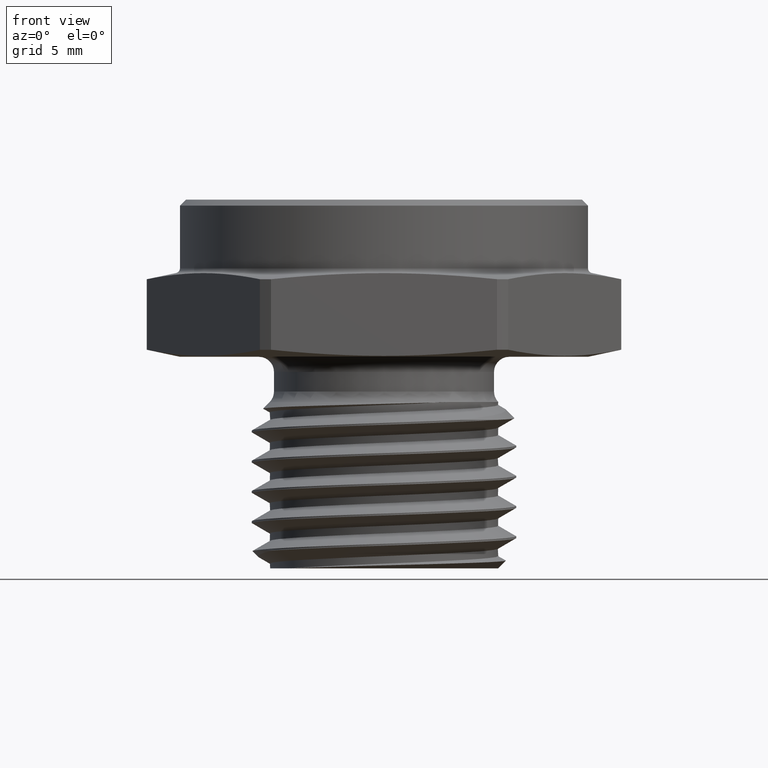
[diagram: clean part render]
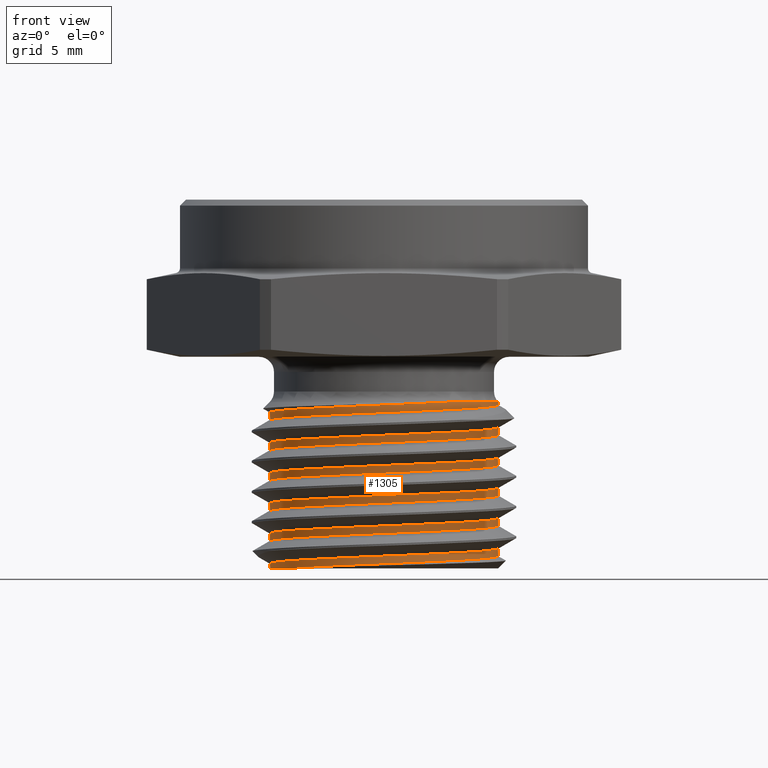
[diagram: same view with one face highlighted and labeled with its STEP entity id]
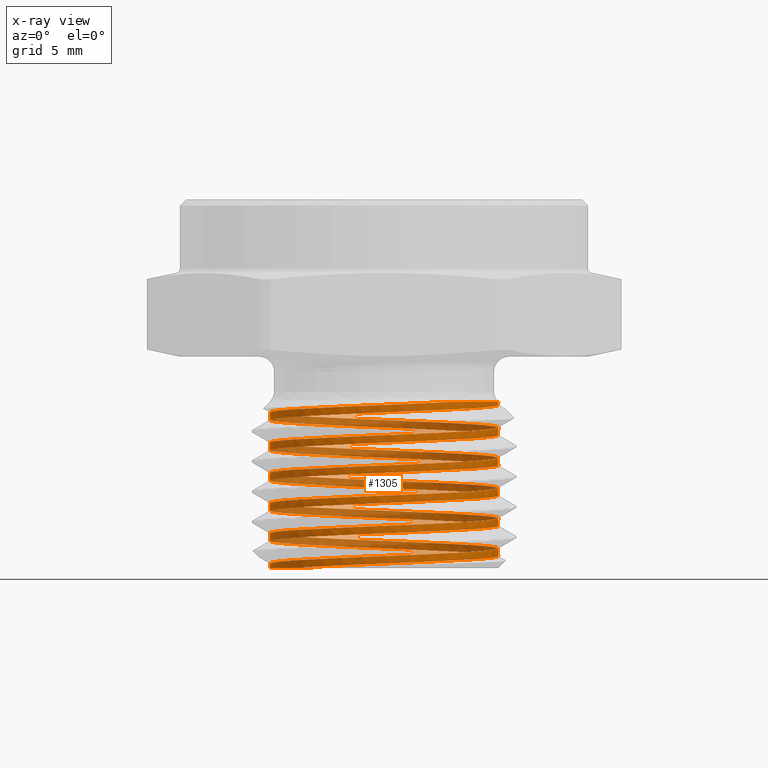
[diagram: x-ray of the same camera — body ghosted, the highlighted face saturated]
A machine part, front view. The second image highlights one B-rep face of the part: STEP entity #1305.
The next image is the same camera in x-ray: the body ghosted, the highlighted face saturated — about 43% of this face is hidden behind the body in this view.
In plain terms, the highlighted face is a freeform B-spline surface patch.
Its self-contained STEP definition (entity closure, byte-faithful):
#19 = ORIENTED_EDGE ( 'NONE', *, *, #189, .F. ) ;
#20 = ORIENTED_EDGE ( 'NONE', *, *, #184, .T. ) ;
#21 = ORIENTED_EDGE ( 'NONE', *, *, #190, .T. ) ;
#95 = B_SPLINE_CURVE_WITH_KNOTS ( 'NONE', 3,
 ( #1222, #1224, #1075, #1221, #1220, #1219 ),
 .UNSPECIFIED., .F., .F.,
 ( 4, 2, 4 ),
 ( 1.434369474444831300E-013, 0.001508367628824776600, 0.003016735257506116200 ),
 .UNSPECIFIED. ) ;
#97 = B_SPLINE_CURVE_WITH_KNOTS ( 'NONE', 3,
 ( #1212, #1234, #1218, #1211, #1210, #1209, #1208, #1206, #1205, #1204, #1203, #1202, #1201, #1200, #1199, #1198, #1197, #1196 ),
 .UNSPECIFIED., .F., .F.,
 ( 4, 2, 2, 2, 2, 2, 2, 2, 4 ),
 ( 0.0000000000000000000, 0.0009484262291047137600, 0.001896852458209427500, 0.002845278687314141100, 0.003793704916418854200, 0.004742131145523567300, 0.005690557374628278700, 0.006638983603732990900, 0.007587409832837703100 ),
 .UNSPECIFIED. ) ;
#98 =( BOUNDED_CURVE ( )  B_SPLINE_CURVE ( 2, ( #1216, #1185, #1180, #1179, #1178, #1177, #1176, #1175, #1174, #1173, #1172, #1171, #1170, #1169, #1168, #1167, #1166, #1165, #1164, #1163, #1162, #1161, #1160, #1159, #1158, #1157, #1156, #1152, #1151, #1150, #1149, #1148, #1147, #1146, #1145, #1144, #1143, #1142, #1141, #1139, #1138, #1137, #1133, #1132, #1131, #1130, #1125, #1124, #1123, #1122, #1121, #1119, #1118, #1117, #1116, #1115, #1114, #1113, #1112, #1111, #1109, #1106, #1105, #1104, #1103, #1102, #1101, #1100, #1099, #1098, #1097, #1096, #1095, #1094, #1090, #1088, #1087, #1086, #1083, #1082, #1081, #1078, #1077, #1076, #1073, #1072, #1071, #1069, #1068, #1067, #1066 ),
 .UNSPECIFIED., .F., .F. ) 
 B_SPLINE_CURVE_WITH_KNOTS ( ( 3, 2, 2, 2, 2, 2, 2, 2, 2, 2, 2, 2, 2, 2, 2, 2, 2, 2, 2, 2, 2, 2, 2, 2, 2, 2, 2, 2, 2, 2, 2, 2, 2, 2, 2, 2, 2, 2, 2, 2, 2, 2, 2, 2, 2, 3 ),
 ( 0.1203738312450096100, 0.1250000000000000000, 0.1428571428571428500, 0.1607142857142857300, 0.1785714285714285800, 0.1964285714285714200, 0.2142857142857142700, 0.2321428571428571500, 0.2500000000000000000, 0.2678571428571428500, 0.2857142857142857000, 0.3035714285714285500, 0.3214285714285714500, 0.3392857142857143000, 0.3571428571428571500, 0.3750000000000000000, 0.3928571428571428500, 0.4107142857142857000, 0.4285714285714285500, 0.4464285714285714500, 0.4642857142857143000, 0.4821428571428571500, 0.5000000000000000000, 0.5178571428571429000, 0.5357142857142857000, 0.5535714285714286000, 0.5714285714285714000, 0.5892857142857143000, 0.6071428571428572100, 0.6250000000000000000, 0.6428571428571427900, 0.6607142857142855900, 0.6785714285714286000, 0.6964285714285714000, 0.7142857142857141900, 0.7321428571428569800, 0.7500000000000000000, 0.7678571428571427900, 0.7857142857142855900, 0.8035714285714286000, 0.8214285714285714000, 0.8392857142857141900, 0.8571428571428569800, 0.8750000000000000000, 0.8928571428571427900, 0.9070215827558767400 ),
 .UNSPECIFIED. ) 
 CURVE ( )  GEOMETRIC_REPRESENTATION_ITEM ( )  RATIONAL_B_SPLINE_CURVE ( ( 0.9707772699021690600, 0.9802798168145533400, 1.000000000000000000, 0.9238795325112867400, 1.000000000000000000, 0.9238795325112867400, 1.000000000000000000, 0.9238795325112867400, 1.000000000000000000, 0.9238795325112867400, 1.000000000000000000, 0.9238795325112867400, 1.000000000000000000, 0.9238795325112867400, 1.000000000000000000, 0.9238795325112867400, 1.000000000000000000, 0.9238795325112867400, 1.000000000000000000, 0.9238795325112867400, 1.000000000000000000, 0.9238795325112867400, 1.000000000000000000, 0.9238795325112867400, 1.000000000000000000, 0.9238795325112867400, 1.000000000000000000, 0.9238795325112867400, 1.000000000000000000, 0.9238795325112867400, 1.000000000000000000, 0.9238795325112867400, 1.000000000000000000, 0.9238795325112867400, 1.000000000000000000, 0.9238795325112867400, 1.000000000000000000, 0.9238795325112867400, 1.000000000000000000, 0.9238795325112867400, 1.000000000000000000, 0.9238795325112867400, 1.000000000000000000, 0.9238795325112867400, 1.000000000000000000, 0.9238795325112867400, 1.000000000000000000, 0.9238795325112867400, 1.000000000000000000, 0.9238795325112867400, 1.000000000000000000, 0.9238795325112867400, 1.000000000000000000, 0.9238795325112867400, 1.000000000000000000, 0.9238795325112867400, 1.000000000000000000, 0.9238795325112867400, 1.000000000000000000, 0.9238795325112867400, 1.000000000000000000, 0.9238795325112867400, 1.000000000000000000, 0.9238795325112867400, 1.000000000000000000, 0.9238795325112867400, 1.000000000000000000, 0.9238795325112867400, 1.000000000000000000, 0.9238795325112867400, 1.000000000000000000, 0.9238795325112867400, 1.000000000000000000, 0.9238795325112867400, 1.000000000000000000, 0.9238795325112867400, 1.000000000000000000, 0.9238795325112867400, 1.000000000000000000, 0.9238795325112867400, 1.000000000000000000, 0.9238795325112867400, 1.000000000000000000, 0.9238795325112867400, 1.000000000000000000, 0.9238795325112867400, 1.000000000000000000, 0.9238795325112867400, 1.000000000000000000, 0.9396205879387847800, 0.9750281178429109900 ) ) 
 REPRESENTATION_ITEM ( '' )  );
#99 =( BOUNDED_CURVE ( )  B_SPLINE_CURVE ( 2, ( #1184, #1195, #519, #520, #521, #522, #523, #524, #525, #526, #527, #528, #529, #530, #531, #532, #533, #534, #535, #536, #537, #538, #539, #540, #541, #542, #543, #544, #545, #546, #547, #548, #549, #550, #551, #552, #553, #554, #555, #556, #557, #558, #559, #560, #561, #562, #563, #564, #565, #566, #567, #568, #569, #570, #571, #572, #573, #574, #575, #576, #577, #578, #579, #580, #581, #582, #583, #584, #585, #586, #587, #588, #589, #590, #591, #592, #593, #594, #595, #596, #597, #598, #599, #600, #601, #602, #603, #604, #605, #606, #607 ),
 .UNSPECIFIED., .F., .T. ) 
 B_SPLINE_CURVE_WITH_KNOTS ( ( 3, 2, 2, 2, 2, 2, 2, 2, 2, 2, 2, 2, 2, 2, 2, 2, 2, 2, 2, 2, 2, 2, 2, 2, 2, 2, 2, 2, 2, 2, 2, 2, 2, 2, 2, 2, 2, 2, 2, 2, 2, 2, 2, 2, 2, 3 ),
 ( 0.1560881169592949800, 0.1607142857142857300, 0.1785714285714285800, 0.1964285714285714200, 0.2142857142857142700, 0.2321428571428571500, 0.2500000000000000000, 0.2678571428571428500, 0.2857142857142857000, 0.3035714285714285500, 0.3214285714285714500, 0.3392857142857143000, 0.3571428571428571500, 0.3750000000000000000, 0.3928571428571428500, 0.4107142857142857000, 0.4285714285714285500, 0.4464285714285714500, 0.4642857142857143000, 0.4821428571428571500, 0.5000000000000000000, 0.5178571428571429000, 0.5357142857142855900, 0.5535714285714286000, 0.5714285714285714000, 0.5892857142857143000, 0.6071428571428571000, 0.6250000000000000000, 0.6428571428571429000, 0.6607142857142855900, 0.6785714285714286000, 0.6964285714285714000, 0.7142857142857141900, 0.7321428571428569800, 0.7500000000000000000, 0.7678571428571427900, 0.7857142857142855900, 0.8035714285714286000, 0.8214285714285716200, 0.8392857142857141900, 0.8571428571428569800, 0.8750000000000000000, 0.8928571428571427900, 0.9107142857142855900, 0.9285714285714286000, 0.9427358684701496700 ),
 .UNSPECIFIED. ) 
 CURVE ( )  GEOMETRIC_REPRESENTATION_ITEM ( )  RATIONAL_B_SPLINE_CURVE ( ( 0.9707772699021677300, 0.9802798168145519000, 1.000000000000000000, 0.9238795325112867400, 1.000000000000000000, 0.9238795325112867400, 1.000000000000000000, 0.9238795325112867400, 1.000000000000000000, 0.9238795325112867400, 1.000000000000000000, 0.9238795325112867400, 1.000000000000000000, 0.9238795325112867400, 1.000000000000000000, 0.9238795325112867400, 1.000000000000000000, 0.9238795325112867400, 1.000000000000000000, 0.9238795325112867400, 1.000000000000000000, 0.9238795325112867400, 1.000000000000000000, 0.9238795325112867400, 1.000000000000000000, 0.9238795325112867400, 1.000000000000000000, 0.9238795325112867400, 1.000000000000000000, 0.9238795325112867400, 1.000000000000000000, 0.9238795325112867400, 1.000000000000000000, 0.9238795325112867400, 1.000000000000000000, 0.9238795325112867400, 1.000000000000000000, 0.9238795325112867400, 1.000000000000000000, 0.9238795325112867400, 1.000000000000000000, 0.9238795325112867400, 1.000000000000000000, 0.9238795325112867400, 1.000000000000000000, 0.9238795325112867400, 1.000000000000000000, 0.9238795325112867400, 1.000000000000000000, 0.9238795325112867400, 1.000000000000000000, 0.9238795325112867400, 1.000000000000000000, 0.9238795325112867400, 1.000000000000000000, 0.9238795325112867400, 1.000000000000000000, 0.9238795325112867400, 1.000000000000000000, 0.9238795325112867400, 1.000000000000000000, 0.9238795325112867400, 1.000000000000000000, 0.9238795325112867400, 1.000000000000000000, 0.9238795325112867400, 1.000000000000000000, 0.9238795325112867400, 1.000000000000000000, 0.9238795325112867400, 1.000000000000000000, 0.9238795325112867400, 1.000000000000000000, 0.9238795325112867400, 1.000000000000000000, 0.9238795325112867400, 1.000000000000000000, 0.9238795325112867400, 1.000000000000000000, 0.9238795325112867400, 1.000000000000000000, 0.9238795325112867400, 1.000000000000000000, 0.9238795325112867400, 1.000000000000000000, 0.9238795325112867400, 1.000000000000000000, 0.9238795325112867400, 1.000000000000000000, 0.9396205879388391800, 0.9750281178428471500 ) ) 
 REPRESENTATION_ITEM ( '' )  );
#109 = B_SPLINE_CURVE_WITH_KNOTS ( 'NONE', 3,
 ( #889, #890, #895, #896, #897, #898, #899, #900, #901, #902, #903, #904, #905, #906 ),
 .UNSPECIFIED., .F., .F.,
 ( 4, 2, 2, 2, 2, 2, 4 ),
 ( 0.003016735257506116200, 0.003588069579440048200, 0.004159403901373979700, 0.005302072545241843500, 0.005873406867175775900, 0.006444741189109708300, 0.007587409832977575600 ),
 .UNSPECIFIED. ) ;
#117 =( BOUNDED_SURFACE ( )  B_SPLINE_SURFACE ( 1, 2, ( 
 ( #1780, #1779, #1782, #1783, #1784, #1785, #1786, #1787, #1788, #1789, #1790, #1791, #1792, #1793, #1794, #1795, #1796, #1797, #1798, #1799, #1800, #1801, #1802, #1803, #1804, #1805, #1806, #1807, #1808, #1809, #1810, #1811, #1812, #1813, #1814, #1815, #1816, #1817, #1818, #1819, #1820, #1821, #1822, #1823, #1824, #1825, #1826, #1827, #1828, #1829, #1830, #1831, #1832, #1833, #1834, #1835, #1836, #1837, #1838, #1839, #1840, #1841, #1842, #1843, #1844, #1845, #1846, #1847, #1848, #1849, #1850, #1851, #1852, #1853, #1854, #1855, #1856, #1857, #1858, #1859, #1860, #1861, #1862, #1863, #1864, #1865, #1866, #1867, #1868, #1869, #1870, #1871, #1872, #1873, #1874, #1875, #1876, #1877, #1878, #1879, #1880, #1881, #1882, #1883, #1884, #1885, #1886, #1887, #1888, #1889, #1890, #1891, #1892 ),
 ( #1893, #1894, #1895, #1896, #1897, #1898, #1899, #1900, #1901, #1902, #1903, #1904, #1905, #1906, #1907, #1908, #1909, #1910, #1911, #1912, #1913, #1914, #1915, #1916, #1917, #1918, #1919, #1920, #1921, #1922, #1923, #1924, #1925, #1926, #1927, #1928, #1929, #1930, #1931, #1932, #1933, #1934, #1935, #1936, #1937, #1938, #1939, #1940, #1941, #1942, #1943, #1944, #1945, #1946, #1947, #1948, #1949, #1950, #1951, #1952, #1953, #1954, #1955, #1956, #1957, #1958, #1959, #1960, #1961, #1962, #1963, #1964, #1965, #1966, #1967, #1968, #1969, #1970, #1971, #1972, #1973, #1974, #1975, #1976, #1977, #1978, #1979, #1980, #1981, #1982, #1983, #1984, #1985, #1986, #1987, #1988, #1989, #1990, #1991, #1992, #1993, #1994, #1995, #1996, #1997, #1998, #1999, #2000, #2001, #2002, #2003, #2004, #2005 ) ),
 .UNSPECIFIED., .F., .F., .F. ) 
 B_SPLINE_SURFACE_WITH_KNOTS ( ( 2, 2 ),
 ( 3, 2, 2, 2, 2, 2, 2, 2, 2, 2, 2, 2, 2, 2, 2, 2, 2, 2, 2, 2, 2, 2, 2, 2, 2, 2, 2, 2, 2, 2, 2, 2, 2, 2, 2, 2, 2, 2, 2, 2, 2, 2, 2, 2, 2, 2, 2, 2, 2, 2, 2, 2, 2, 2, 2, 2, 3 ),
 ( 0.0000000000000000000, 1.000000000000000000 ),
 ( 0.0000000000000000000, 0.01785714285714285600, 0.03571428571428571200, 0.05357142857142856800, 0.07142857142857142500, 0.08928571428571428800, 0.1071428571428571400, 0.1250000000000000000, 0.1428571428571428500, 0.1607142857142857300, 0.1785714285714285800, 0.1964285714285714200, 0.2142857142857142700, 0.2321428571428571500, 0.2500000000000000000, 0.2678571428571428500, 0.2857142857142857000, 0.3035714285714285500, 0.3214285714285714500, 0.3392857142857143000, 0.3571428571428571500, 0.3750000000000000000, 0.3928571428571428500, 0.4107142857142857000, 0.4285714285714285500, 0.4464285714285714500, 0.4642857142857143000, 0.4821428571428571500, 0.5000000000000000000, 0.5178571428571429000, 0.5357142857142857000, 0.5535714285714286000, 0.5714285714285714000, 0.5892857142857143000, 0.6071428571428571000, 0.6250000000000000000, 0.6428571428571429000, 0.6607142857142857000, 0.6785714285714286000, 0.6964285714285714000, 0.7142857142857143000, 0.7321428571428571000, 0.7500000000000000000, 0.7678571428571429000, 0.7857142857142857000, 0.8035714285714286000, 0.8214285714285714000, 0.8392857142857143000, 0.8571428571428571000, 0.8750000000000000000, 0.8928571428571429000, 0.9107142857142857000, 0.9285714285714286000, 0.9464285714285714000, 0.9642857142857143000, 0.9821428571428571000, 1.000000000000000000 ),
 .UNSPECIFIED. ) 
 GEOMETRIC_REPRESENTATION_ITEM ( )  RATIONAL_B_SPLINE_SURFACE ( (
 ( 1.000000000000000000, 0.9238795325112867400, 1.000000000000000000, 0.9238795325112867400, 1.000000000000000000, 0.9238795325112867400, 1.000000000000000000, 0.9238795325112867400, 1.000000000000000000, 0.9238795325112867400, 1.000000000000000000, 0.9238795325112867400, 1.000000000000000000, 0.9238795325112867400, 1.000000000000000000, 0.9238795325112867400, 1.000000000000000000, 0.9238795325112867400, 1.000000000000000000, 0.9238795325112867400, 1.000000000000000000, 0.9238795325112867400, 1.000000000000000000, 0.9238795325112867400, 1.000000000000000000, 0.9238795325112867400, 1.000000000000000000, 0.9238795325112867400, 1.000000000000000000, 0.9238795325112867400, 1.000000000000000000, 0.9238795325112867400, 1.000000000000000000, 0.9238795325112867400, 1.000000000000000000, 0.9238795325112867400, 1.000000000000000000, 0.9238795325112867400, 1.000000000000000000, 0.9238795325112867400, 1.000000000000000000, 0.9238795325112867400, 1.000000000000000000, 0.9238795325112867400, 1.000000000000000000, 0.9238795325112867400, 1.000000000000000000, 0.9238795325112867400, 1.000000000000000000, 0.9238795325112867400, 1.000000000000000000, 0.9238795325112867400, 1.000000000000000000, 0.9238795325112867400, 1.000000000000000000, 0.9238795325112867400, 1.000000000000000000, 0.9238795325112867400, 1.000000000000000000, 0.9238795325112867400, 1.000000000000000000, 0.9238795325112867400, 1.000000000000000000, 0.9238795325112867400, 1.000000000000000000, 0.9238795325112867400, 1.000000000000000000, 0.9238795325112867400, 1.000000000000000000, 0.9238795325112867400, 1.000000000000000000, 0.9238795325112867400, 1.000000000000000000, 0.9238795325112867400, 1.000000000000000000, 0.9238795325112867400, 1.000000000000000000, 0.9238795325112867400, 1.000000000000000000, 0.9238795325112867400, 1.000000000000000000, 0.9238795325112867400, 1.000000000000000000, 0.9238795325112867400, 1.000000000000000000, 0.9238795325112867400, 1.000000000000000000, 0.9238795325112867400, 1.000000000000000000, 0.9238795325112867400, 1.000000000000000000, 0.9238795325112867400, 1.000000000000000000, 0.9238795325112867400, 1.000000000000000000, 0.9238795325112867400, 1.000000000000000000, 0.9238795325112867400, 1.000000000000000000, 0.9238795325112867400, 1.000000000000000000, 0.9238795325112867400, 1.000000000000000000, 0.9238795325112867400, 1.000000000000000000, 0.9238795325112867400, 1.000000000000000000, 0.9238795325112867400, 1.000000000000000000, 0.9238795325112867400, 1.000000000000000000, 0.9238795325112867400, 1.000000000000000000),
 ( 1.000000000000000000, 0.9238795325112867400, 1.000000000000000000, 0.9238795325112867400, 1.000000000000000000, 0.9238795325112867400, 1.000000000000000000, 0.9238795325112867400, 1.000000000000000000, 0.9238795325112867400, 1.000000000000000000, 0.9238795325112867400, 1.000000000000000000, 0.9238795325112867400, 1.000000000000000000, 0.9238795325112867400, 1.000000000000000000, 0.9238795325112867400, 1.000000000000000000, 0.9238795325112867400, 1.000000000000000000, 0.9238795325112867400, 1.000000000000000000, 0.9238795325112867400, 1.000000000000000000, 0.9238795325112867400, 1.000000000000000000, 0.9238795325112867400, 1.000000000000000000, 0.9238795325112867400, 1.000000000000000000, 0.9238795325112867400, 1.000000000000000000, 0.9238795325112867400, 1.000000000000000000, 0.9238795325112867400, 1.000000000000000000, 0.9238795325112867400, 1.000000000000000000, 0.9238795325112867400, 1.000000000000000000, 0.9238795325112867400, 1.000000000000000000, 0.9238795325112867400, 1.000000000000000000, 0.9238795325112867400, 1.000000000000000000, 0.9238795325112867400, 1.000000000000000000, 0.9238795325112867400, 1.000000000000000000, 0.9238795325112867400, 1.000000000000000000, 0.9238795325112867400, 1.000000000000000000, 0.9238795325112867400, 1.000000000000000000, 0.9238795325112867400, 1.000000000000000000, 0.9238795325112867400, 1.000000000000000000, 0.9238795325112867400, 1.000000000000000000, 0.9238795325112867400, 1.000000000000000000, 0.9238795325112867400, 1.000000000000000000, 0.9238795325112867400, 1.000000000000000000, 0.9238795325112867400, 1.000000000000000000, 0.9238795325112867400, 1.000000000000000000, 0.9238795325112867400, 1.000000000000000000, 0.9238795325112867400, 1.000000000000000000, 0.9238795325112867400, 1.000000000000000000, 0.9238795325112867400, 1.000000000000000000, 0.9238795325112867400, 1.000000000000000000, 0.9238795325112867400, 1.000000000000000000, 0.9238795325112867400, 1.000000000000000000, 0.9238795325112867400, 1.000000000000000000, 0.9238795325112867400, 1.000000000000000000, 0.9238795325112867400, 1.000000000000000000, 0.9238795325112867400, 1.000000000000000000, 0.9238795325112867400, 1.000000000000000000, 0.9238795325112867400, 1.000000000000000000, 0.9238795325112867400, 1.000000000000000000, 0.9238795325112867400, 1.000000000000000000, 0.9238795325112867400, 1.000000000000000000, 0.9238795325112867400, 1.000000000000000000, 0.9238795325112867400, 1.000000000000000000, 0.9238795325112867400, 1.000000000000000000, 0.9238795325112867400, 1.000000000000000000) ) ) 
 REPRESENTATION_ITEM ( '' )  SURFACE ( )  );
#182 = EDGE_CURVE ( 'NONE', #381, #349, #95, .T. ) ;
#184 = EDGE_CURVE ( 'NONE', #1670, #1662, #97, .T. ) ;
#189 = EDGE_CURVE ( 'NONE', #1670, #362, #98, .T. ) ;
#190 = EDGE_CURVE ( 'NONE', #1662, #381, #99, .T. ) ;
#242 = EDGE_CURVE ( 'NONE', #349, #362, #109, .T. ) ;
#349 = VERTEX_POINT ( 'NONE', #1016 ) ;
#362 = VERTEX_POINT ( 'NONE', #1026 ) ;
#381 = VERTEX_POINT ( 'NONE', #1044 ) ;
#519 = CARTESIAN_POINT ( 'NONE',  ( -0.1336431792995438900, -0.1336431839889709900, -0.3484261703687760400 ) ) ;
#520 = CARTESIAN_POINT ( 'NONE',  ( -0.07828635997258923100, -0.1890000013735013400, -0.3453011703687761100 ) ) ;
#521 = CARTESIAN_POINT ( 'NONE',  ( 3.315925717588489000E-009, -0.1889999999999999500, -0.3421761703687760100 ) ) ;
#522 = CARTESIAN_POINT ( 'NONE',  ( 0.07828636660444067400, -0.1889999986264985500, -0.3390511703687760200 ) ) ;
#523 = CARTESIAN_POINT ( 'NONE',  ( 0.1336431839889709900, -0.1336431792995438900, -0.3359261703687760300 ) ) ;
#524 = CARTESIAN_POINT ( 'NONE',  ( 0.1890000013735013400, -0.07828635997258923100, -0.3328011703687759900 ) ) ;
#525 = CARTESIAN_POINT ( 'NONE',  ( 0.1889999999999999500, 3.315925706015577100E-009, -0.3296761703687760000 ) ) ;
#526 = CARTESIAN_POINT ( 'NONE',  ( 0.1889999986264985800, 0.07828636660444064600, -0.3265511703687760100 ) ) ;
#527 = CARTESIAN_POINT ( 'NONE',  ( 0.1336431792995439200, 0.1336431839889709900, -0.3234261703687760200 ) ) ;
#528 = CARTESIAN_POINT ( 'NONE',  ( 0.07828635997258932800, 0.1890000013735013100, -0.3203011703687760300 ) ) ;
#529 = CARTESIAN_POINT ( 'NONE',  ( -3.315925694442664400E-009, 0.1889999999999999500, -0.3171761703687759900 ) ) ;
#530 = CARTESIAN_POINT ( 'NONE',  ( -0.07828636660444073000, 0.1889999986264985200, -0.3140511703687760000 ) ) ;
#531 = CARTESIAN_POINT ( 'NONE',  ( -0.1336431839889709900, 0.1336431792995439200, -0.3109261703687760100 ) ) ;
#532 = CARTESIAN_POINT ( 'NONE',  ( -0.1890000013735013100, 0.07828635997258934200, -0.3078011703687759700 ) ) ;
#533 = CARTESIAN_POINT ( 'NONE',  ( -0.1889999999999999500, -3.315925729161401300E-009, -0.3046761703687759800 ) ) ;
#534 = CARTESIAN_POINT ( 'NONE',  ( -0.1889999986264985500, -0.07828636660444068800, -0.3015511703687760400 ) ) ;
#535 = CARTESIAN_POINT ( 'NONE',  ( -0.1336431792995438900, -0.1336431839889709900, -0.2984261703687760600 ) ) ;
#536 = CARTESIAN_POINT ( 'NONE',  ( -0.07828635997258923100, -0.1890000013735013400, -0.2953011703687760100 ) ) ;
#537 = CARTESIAN_POINT ( 'NONE',  ( 3.315925717588489000E-009, -0.1889999999999999500, -0.2921761703687759700 ) ) ;
#538 = CARTESIAN_POINT ( 'NONE',  ( 0.07828636660444067400, -0.1889999986264985500, -0.2890511703687760300 ) ) ;
#539 = CARTESIAN_POINT ( 'NONE',  ( 0.1336431839889709900, -0.1336431792995438900, -0.2859261703687760400 ) ) ;
#540 = CARTESIAN_POINT ( 'NONE',  ( 0.1890000013735013400, -0.07828635997258923100, -0.2828011703687760000 ) ) ;
#541 = CARTESIAN_POINT ( 'NONE',  ( 0.1889999999999999500, 3.315925706015577100E-009, -0.2796761703687760100 ) ) ;
#542 = CARTESIAN_POINT ( 'NONE',  ( 0.1889999986264985800, 0.07828636660444064600, -0.2765511703687760200 ) ) ;
#543 = CARTESIAN_POINT ( 'NONE',  ( 0.1336431792995439200, 0.1336431839889709900, -0.2734261703687760300 ) ) ;
#544 = CARTESIAN_POINT ( 'NONE',  ( 0.07828635997258932800, 0.1890000013735013100, -0.2703011703687759900 ) ) ;
#545 = CARTESIAN_POINT ( 'NONE',  ( -3.315925694442664400E-009, 0.1889999999999999500, -0.2671761703687760000 ) ) ;
#546 = CARTESIAN_POINT ( 'NONE',  ( -0.07828636660444073000, 0.1889999986264985200, -0.2640511703687759600 ) ) ;
#547 = CARTESIAN_POINT ( 'NONE',  ( -0.1336431839889709900, 0.1336431792995439200, -0.2609261703687760200 ) ) ;
#548 = CARTESIAN_POINT ( 'NONE',  ( -0.1890000013735013100, 0.07828635997258934200, -0.2578011703687759800 ) ) ;
#549 = CARTESIAN_POINT ( 'NONE',  ( -0.1889999999999999500, -3.315925729161401300E-009, -0.2546761703687760400 ) ) ;
#550 = CARTESIAN_POINT ( 'NONE',  ( -0.1889999986264985500, -0.07828636660444068800, -0.2515511703687760000 ) ) ;
#551 = CARTESIAN_POINT ( 'NONE',  ( -0.1336431792995438900, -0.1336431839889709900, -0.2484261703687760100 ) ) ;
#552 = CARTESIAN_POINT ( 'NONE',  ( -0.07828635997258923100, -0.1890000013735013400, -0.2453011703687759900 ) ) ;
#553 = CARTESIAN_POINT ( 'NONE',  ( 3.315925717588489000E-009, -0.1889999999999999500, -0.2421761703687760100 ) ) ;
#554 = CARTESIAN_POINT ( 'NONE',  ( 0.07828636660444067400, -0.1889999986264985500, -0.2390511703687759900 ) ) ;
#555 = CARTESIAN_POINT ( 'NONE',  ( 0.1336431839889709900, -0.1336431792995438900, -0.2359261703687760000 ) ) ;
#556 = CARTESIAN_POINT ( 'NONE',  ( 0.1890000013735013400, -0.07828635997258923100, -0.2328011703687760400 ) ) ;
#557 = CARTESIAN_POINT ( 'NONE',  ( 0.1889999999999999500, 3.315925706015577100E-009, -0.2296761703687760200 ) ) ;
#558 = CARTESIAN_POINT ( 'NONE',  ( 0.1889999986264985800, 0.07828636660444064600, -0.2265511703687760100 ) ) ;
#559 = CARTESIAN_POINT ( 'NONE',  ( 0.1336431792995439200, 0.1336431839889709900, -0.2234261703687760200 ) ) ;
#560 = CARTESIAN_POINT ( 'NONE',  ( 0.07828635997258932800, 0.1890000013735013100, -0.2203011703687760000 ) ) ;
#561 = CARTESIAN_POINT ( 'NONE',  ( -3.315925694442664400E-009, 0.1889999999999999500, -0.2171761703687760100 ) ) ;
#562 = CARTESIAN_POINT ( 'NONE',  ( -0.07828636660444073000, 0.1889999986264985200, -0.2140511703687760200 ) ) ;
#563 = CARTESIAN_POINT ( 'NONE',  ( -0.1336431839889709900, 0.1336431792995439200, -0.2109261703687760100 ) ) ;
#564 = CARTESIAN_POINT ( 'NONE',  ( -0.1890000013735013100, 0.07828635997258934200, -0.2078011703687760200 ) ) ;
#565 = CARTESIAN_POINT ( 'NONE',  ( -0.1889999999999999500, -3.315925729161401300E-009, -0.2046761703687760000 ) ) ;
#566 = CARTESIAN_POINT ( 'NONE',  ( -0.1889999986264985500, -0.07828636660444068800, -0.2015511703687760100 ) ) ;
#567 = CARTESIAN_POINT ( 'NONE',  ( -0.1336431792995438900, -0.1336431839889709900, -0.1984261703687759900 ) ) ;
#568 = CARTESIAN_POINT ( 'NONE',  ( -0.07828635997258923100, -0.1890000013735013400, -0.1953011703687759800 ) ) ;
#569 = CARTESIAN_POINT ( 'NONE',  ( 3.315925717588489000E-009, -0.1889999999999999500, -0.1921761703687759900 ) ) ;
#570 = CARTESIAN_POINT ( 'NONE',  ( 0.07828636660444067400, -0.1889999986264985500, -0.1890511703687760300 ) ) ;
#571 = CARTESIAN_POINT ( 'NONE',  ( 0.1336431839889709900, -0.1336431792995438900, -0.1859261703687760100 ) ) ;
#572 = CARTESIAN_POINT ( 'NONE',  ( 0.1890000013735013400, -0.07828635997258923100, -0.1828011703687760200 ) ) ;
#573 = CARTESIAN_POINT ( 'NONE',  ( 0.1889999999999999500, 3.315925706015577100E-009, -0.1796761703687760100 ) ) ;
#574 = CARTESIAN_POINT ( 'NONE',  ( 0.1889999986264985800, 0.07828636660444064600, -0.1765511703687760200 ) ) ;
#575 = CARTESIAN_POINT ( 'NONE',  ( 0.1336431792995439200, 0.1336431839889709900, -0.1734261703687760000 ) ) ;
#576 = CARTESIAN_POINT ( 'NONE',  ( 0.07828635997258932800, 0.1890000013735013100, -0.1703011703687760100 ) ) ;
#577 = CARTESIAN_POINT ( 'NONE',  ( -3.315925694442664400E-009, 0.1889999999999999500, -0.1671761703687759900 ) ) ;
#578 = CARTESIAN_POINT ( 'NONE',  ( -0.07828636660444073000, 0.1889999986264985200, -0.1640511703687760100 ) ) ;
#579 = CARTESIAN_POINT ( 'NONE',  ( -0.1336431839889709900, 0.1336431792995439200, -0.1609261703687759900 ) ) ;
#580 = CARTESIAN_POINT ( 'NONE',  ( -0.1890000013735013100, 0.07828635997258934200, -0.1578011703687760000 ) ) ;
#581 = CARTESIAN_POINT ( 'NONE',  ( -0.1889999999999999500, -3.315925729161401300E-009, -0.1546761703687759800 ) ) ;
#582 = CARTESIAN_POINT ( 'NONE',  ( -0.1889999986264985500, -0.07828636660444068800, -0.1515511703687759900 ) ) ;
#583 = CARTESIAN_POINT ( 'NONE',  ( -0.1336431792995438900, -0.1336431839889709900, -0.1484261703687759800 ) ) ;
#584 = CARTESIAN_POINT ( 'NONE',  ( -0.07828635997258923100, -0.1890000013735013400, -0.1453011703687760200 ) ) ;
#585 = CARTESIAN_POINT ( 'NONE',  ( 3.315925717588489000E-009, -0.1889999999999999500, -0.1421761703687760000 ) ) ;
#586 = CARTESIAN_POINT ( 'NONE',  ( 0.07828636660444067400, -0.1889999986264985500, -0.1390511703687760100 ) ) ;
#587 = CARTESIAN_POINT ( 'NONE',  ( 0.1336431839889709900, -0.1336431792995438900, -0.1359261703687759900 ) ) ;
#588 = CARTESIAN_POINT ( 'NONE',  ( 0.1890000013735013400, -0.07828635997258923100, -0.1328011703687760100 ) ) ;
#589 = CARTESIAN_POINT ( 'NONE',  ( 0.1889999999999999500, 3.315925706015577100E-009, -0.1296761703687759900 ) ) ;
#590 = CARTESIAN_POINT ( 'NONE',  ( 0.1889999986264985800, 0.07828636660444064600, -0.1265511703687760000 ) ) ;
#591 = CARTESIAN_POINT ( 'NONE',  ( 0.1336431792995439200, 0.1336431839889709900, -0.1234261703687759800 ) ) ;
#592 = CARTESIAN_POINT ( 'NONE',  ( 0.07828635997258932800, 0.1890000013735013100, -0.1203011703687759900 ) ) ;
#593 = CARTESIAN_POINT ( 'NONE',  ( -3.315925694442664400E-009, 0.1889999999999999500, -0.1171761703687759800 ) ) ;
#594 = CARTESIAN_POINT ( 'NONE',  ( -0.07828636660444073000, 0.1889999986264985200, -0.1140511703687760200 ) ) ;
#595 = CARTESIAN_POINT ( 'NONE',  ( -0.1336431839889709900, 0.1336431792995439200, -0.1109261703687759900 ) ) ;
#596 = CARTESIAN_POINT ( 'NONE',  ( -0.1890000013735013100, 0.07828635997258934200, -0.1078011703687760000 ) ) ;
#597 = CARTESIAN_POINT ( 'NONE',  ( -0.1889999999999999500, -3.315925729161401300E-009, -0.1046761703687760100 ) ) ;
#598 = CARTESIAN_POINT ( 'NONE',  ( -0.1889999986264985500, -0.07828636660444068800, -0.1015511703687759900 ) ) ;
#599 = CARTESIAN_POINT ( 'NONE',  ( -0.1336431792995438900, -0.1336431839889709900, -0.09842617036877601700 ) ) ;
#600 = CARTESIAN_POINT ( 'NONE',  ( -0.07828635997258923100, -0.1890000013735013400, -0.09530117036877600000 ) ) ;
#601 = CARTESIAN_POINT ( 'NONE',  ( 3.315925717588489000E-009, -0.1889999999999999500, -0.09217617036877601100 ) ) ;
#602 = CARTESIAN_POINT ( 'NONE',  ( 0.07828636660444067400, -0.1889999986264985500, -0.08905117036877603600 ) ) ;
#603 = CARTESIAN_POINT ( 'NONE',  ( 0.1336431839889709900, -0.1336431792995438900, -0.08592617036877597800 ) ) ;
#604 = CARTESIAN_POINT ( 'NONE',  ( 0.1890000013735013400, -0.07828635997258923100, -0.08280117036877598900 ) ) ;
#605 = CARTESIAN_POINT ( 'NONE',  ( 0.1889999999999999500, 3.315925706015577100E-009, -0.07967617036877600000 ) ) ;
#606 = CARTESIAN_POINT ( 'NONE',  ( 0.1889999989287783300, 0.06105713154328890100, -0.07723891926021032900 ) ) ;
#607 = CARTESIAN_POINT ( 'NONE',  ( 0.1532785671802325300, 0.1105743227118074500, -0.07467168204323813800 ) ) ;
#889 = CARTESIAN_POINT ( 'NONE',  ( 0.1889999999999999500, -5.077847802855015500E-016, -0.07467168204323376700 ) ) ;
#890 = CARTESIAN_POINT ( 'NONE',  ( 0.1889999999999999500, -0.007408398856518986900, -0.07467168204323369800 ) ) ;
#895 = CARTESIAN_POINT ( 'NONE',  ( 0.1885659338144757800, -0.01481081737293623300, -0.07467168204323428000 ) ) ;
#896 = CARTESIAN_POINT ( 'NONE',  ( 0.1868156964022447100, -0.02960350121732353500, -0.07467168204323429400 ) ) ;
#897 = CARTESIAN_POINT ( 'NONE',  ( 0.1854856435358789900, -0.03703616413661496600, -0.07467168204323378100 ) ) ;
#898 = CARTESIAN_POINT ( 'NONE',  ( 0.1802440767859989100, -0.05878331762546922000, -0.07467168204323378100 ) ) ;
#899 = CARTESIAN_POINT ( 'NONE',  ( 0.1751044017475008000, -0.07267870259491375500, -0.07467168204323367000 ) ) ;
#900 = CARTESIAN_POINT ( 'NONE',  ( 0.1649212873710765600, -0.09261563206297471200, -0.07467168204323369800 ) ) ;
#901 = CARTESIAN_POINT ( 'NONE',  ( 0.1610944003170355600, -0.09912110661881151600, -0.07467168204323400300 ) ) ;
#902 = CARTESIAN_POINT ( 'NONE',  ( 0.1528005199266922700, -0.1114827372330605400, -0.07467168204323400300 ) ) ;
#903 = CARTESIAN_POINT ( 'NONE',  ( 0.1483136309802378400, -0.1173838283984034000, -0.07467168204323372500 ) ) ;
#904 = CARTESIAN_POINT ( 'NONE',  ( 0.1338469839122427600, -0.1342593390182885400, -0.07467168204323371100 ) ) ;
#905 = CARTESIAN_POINT ( 'NONE',  ( 0.1227625656102303600, -0.1444860352015872600, -0.07467168204323392000 ) ) ;
#906 = CARTESIAN_POINT ( 'NONE',  ( 0.1105743227118935100, -0.1532785671801704700, -0.07467168204323367000 ) ) ;
#1016 = CARTESIAN_POINT ( 'NONE',  ( 0.1889999999999999500, -5.077847802855015500E-016, -0.07467168204323376700 ) ) ;
#1026 = CARTESIAN_POINT ( 'NONE',  ( 0.1105743227118935100, -0.1532785671801704700, -0.07467168204323367000 ) ) ;
#1044 = CARTESIAN_POINT ( 'NONE',  ( 0.1532785671802325300, 0.1105743227118074500, -0.07467168204323813800 ) ) ;
#1066 = CARTESIAN_POINT ( 'NONE',  ( 0.1105743227118935100, -0.1532785671801704700, -0.07467168204323367000 ) ) ;
#1067 = CARTESIAN_POINT ( 'NONE',  ( 0.06105713154334747900, -0.1889999989287782200, -0.07723891926020796900 ) ) ;
#1068 = CARTESIAN_POINT ( 'NONE',  ( 3.315925717588489000E-009, -0.1889999999999999500, -0.07967617036877600000 ) ) ;
#1069 = CARTESIAN_POINT ( 'NONE',  ( -0.07828635997258923100, -0.1890000013735013400, -0.08280117036877598900 ) ) ;
#1071 = CARTESIAN_POINT ( 'NONE',  ( -0.1336431792995438900, -0.1336431839889709900, -0.08592617036877600600 ) ) ;
#1072 = CARTESIAN_POINT ( 'NONE',  ( -0.1889999986264985500, -0.07828636660444068800, -0.08905117036877599500 ) ) ;
#1073 = CARTESIAN_POINT ( 'NONE',  ( -0.1889999999999999500, -3.315925729161401300E-009, -0.09217617036877601100 ) ) ;
#1075 = CARTESIAN_POINT ( 'NONE',  ( 0.1738698952228744100, 0.07663408569361115900, -0.07467168204323523800 ) ) ;
#1076 = CARTESIAN_POINT ( 'NONE',  ( -0.1890000013735013100, 0.07828635997258934200, -0.09530117036877600000 ) ) ;
#1077 = CARTESIAN_POINT ( 'NONE',  ( -0.1336431839889709900, 0.1336431792995439200, -0.09842617036877597500 ) ) ;
#1078 = CARTESIAN_POINT ( 'NONE',  ( -0.07828636660444073000, 0.1889999986264985200, -0.1015511703687759900 ) ) ;
#1081 = CARTESIAN_POINT ( 'NONE',  ( -3.315925694442664400E-009, 0.1889999999999999500, -0.1046761703687759800 ) ) ;
#1082 = CARTESIAN_POINT ( 'NONE',  ( 0.07828635997258932800, 0.1890000013735013100, -0.1078011703687760000 ) ) ;
#1083 = CARTESIAN_POINT ( 'NONE',  ( 0.1336431792995439200, 0.1336431839889709900, -0.1109261703687759900 ) ) ;
#1086 = CARTESIAN_POINT ( 'NONE',  ( 0.1889999986264985800, 0.07828636660444064600, -0.1140511703687760200 ) ) ;
#1087 = CARTESIAN_POINT ( 'NONE',  ( 0.1889999999999999500, 3.315925706015577100E-009, -0.1171761703687759800 ) ) ;
#1088 = CARTESIAN_POINT ( 'NONE',  ( 0.1890000013735013400, -0.07828635997258923100, -0.1203011703687759900 ) ) ;
#1090 = CARTESIAN_POINT ( 'NONE',  ( 0.1336431839889709900, -0.1336431792995438900, -0.1234261703687759800 ) ) ;
#1094 = CARTESIAN_POINT ( 'NONE',  ( 0.07828636660444067400, -0.1889999986264985500, -0.1265511703687760000 ) ) ;
#1095 = CARTESIAN_POINT ( 'NONE',  ( 3.315925717588489000E-009, -0.1889999999999999500, -0.1296761703687759900 ) ) ;
#1096 = CARTESIAN_POINT ( 'NONE',  ( -0.07828635997258923100, -0.1890000013735013400, -0.1328011703687760100 ) ) ;
#1097 = CARTESIAN_POINT ( 'NONE',  ( -0.1336431792995438900, -0.1336431839889709900, -0.1359261703687759900 ) ) ;
#1098 = CARTESIAN_POINT ( 'NONE',  ( -0.1889999986264985500, -0.07828636660444068800, -0.1390511703687760100 ) ) ;
#1099 = CARTESIAN_POINT ( 'NONE',  ( -0.1889999999999999500, -3.315925729161401300E-009, -0.1421761703687760000 ) ) ;
#1100 = CARTESIAN_POINT ( 'NONE',  ( -0.1890000013735013100, 0.07828635997258934200, -0.1453011703687760200 ) ) ;
#1101 = CARTESIAN_POINT ( 'NONE',  ( -0.1336431839889709900, 0.1336431792995439200, -0.1484261703687759800 ) ) ;
#1102 = CARTESIAN_POINT ( 'NONE',  ( -0.07828636660444073000, 0.1889999986264985200, -0.1515511703687759900 ) ) ;
#1103 = CARTESIAN_POINT ( 'NONE',  ( -3.315925694442664400E-009, 0.1889999999999999500, -0.1546761703687759800 ) ) ;
#1104 = CARTESIAN_POINT ( 'NONE',  ( 0.07828635997258932800, 0.1890000013735013100, -0.1578011703687760000 ) ) ;
#1105 = CARTESIAN_POINT ( 'NONE',  ( 0.1336431792995439200, 0.1336431839889709900, -0.1609261703687759900 ) ) ;
#1106 = CARTESIAN_POINT ( 'NONE',  ( 0.1889999986264985800, 0.07828636660444064600, -0.1640511703687760100 ) ) ;
#1109 = CARTESIAN_POINT ( 'NONE',  ( 0.1889999999999999500, 3.315925706015577100E-009, -0.1671761703687759900 ) ) ;
#1111 = CARTESIAN_POINT ( 'NONE',  ( 0.1890000013735013400, -0.07828635997258923100, -0.1703011703687760100 ) ) ;
#1112 = CARTESIAN_POINT ( 'NONE',  ( 0.1336431839889709900, -0.1336431792995438900, -0.1734261703687760000 ) ) ;
#1113 = CARTESIAN_POINT ( 'NONE',  ( 0.07828636660444067400, -0.1889999986264985500, -0.1765511703687760200 ) ) ;
#1114 = CARTESIAN_POINT ( 'NONE',  ( 3.315925717588489000E-009, -0.1889999999999999500, -0.1796761703687760100 ) ) ;
#1115 = CARTESIAN_POINT ( 'NONE',  ( -0.07828635997258923100, -0.1890000013735013400, -0.1828011703687760200 ) ) ;
#1116 = CARTESIAN_POINT ( 'NONE',  ( -0.1336431792995438900, -0.1336431839889709900, -0.1859261703687760100 ) ) ;
#1117 = CARTESIAN_POINT ( 'NONE',  ( -0.1889999986264985500, -0.07828636660444068800, -0.1890511703687760300 ) ) ;
#1118 = CARTESIAN_POINT ( 'NONE',  ( -0.1889999999999999500, -3.315925729161401300E-009, -0.1921761703687759900 ) ) ;
#1119 = CARTESIAN_POINT ( 'NONE',  ( -0.1890000013735013100, 0.07828635997258934200, -0.1953011703687759800 ) ) ;
#1121 = CARTESIAN_POINT ( 'NONE',  ( -0.1336431839889709900, 0.1336431792995439200, -0.1984261703687759900 ) ) ;
#1122 = CARTESIAN_POINT ( 'NONE',  ( -0.07828636660444073000, 0.1889999986264985200, -0.2015511703687759800 ) ) ;
#1123 = CARTESIAN_POINT ( 'NONE',  ( -3.315925694442664400E-009, 0.1889999999999999500, -0.2046761703687760000 ) ) ;
#1124 = CARTESIAN_POINT ( 'NONE',  ( 0.07828635997258932800, 0.1890000013735013100, -0.2078011703687760200 ) ) ;
#1125 = CARTESIAN_POINT ( 'NONE',  ( 0.1336431792995439200, 0.1336431839889709900, -0.2109261703687760100 ) ) ;
#1130 = CARTESIAN_POINT ( 'NONE',  ( 0.1889999986264985800, 0.07828636660444064600, -0.2140511703687760200 ) ) ;
#1131 = CARTESIAN_POINT ( 'NONE',  ( 0.1889999999999999500, 3.315925706015577100E-009, -0.2171761703687760100 ) ) ;
#1132 = CARTESIAN_POINT ( 'NONE',  ( 0.1890000013735013400, -0.07828635997258923100, -0.2203011703687760000 ) ) ;
#1133 = CARTESIAN_POINT ( 'NONE',  ( 0.1336431839889709900, -0.1336431792995438900, -0.2234261703687760200 ) ) ;
#1137 = CARTESIAN_POINT ( 'NONE',  ( 0.07828636660444067400, -0.1889999986264985500, -0.2265511703687760100 ) ) ;
#1138 = CARTESIAN_POINT ( 'NONE',  ( 3.315925717588489000E-009, -0.1889999999999999500, -0.2296761703687760200 ) ) ;
#1139 = CARTESIAN_POINT ( 'NONE',  ( -0.07828635997258923100, -0.1890000013735013400, -0.2328011703687760400 ) ) ;
#1141 = CARTESIAN_POINT ( 'NONE',  ( -0.1336431792995438900, -0.1336431839889709900, -0.2359261703687760000 ) ) ;
#1142 = CARTESIAN_POINT ( 'NONE',  ( -0.1889999986264985500, -0.07828636660444068800, -0.2390511703687759900 ) ) ;
#1143 = CARTESIAN_POINT ( 'NONE',  ( -0.1889999999999999500, -3.315925729161401300E-009, -0.2421761703687760100 ) ) ;
#1144 = CARTESIAN_POINT ( 'NONE',  ( -0.1890000013735013100, 0.07828635997258934200, -0.2453011703687759900 ) ) ;
#1145 = CARTESIAN_POINT ( 'NONE',  ( -0.1336431839889709900, 0.1336431792995439200, -0.2484261703687760100 ) ) ;
#1146 = CARTESIAN_POINT ( 'NONE',  ( -0.07828636660444073000, 0.1889999986264985200, -0.2515511703687760000 ) ) ;
#1147 = CARTESIAN_POINT ( 'NONE',  ( -3.315925694442664400E-009, 0.1889999999999999500, -0.2546761703687759900 ) ) ;
#1148 = CARTESIAN_POINT ( 'NONE',  ( 0.07828635997258932800, 0.1890000013735013100, -0.2578011703687759800 ) ) ;
#1149 = CARTESIAN_POINT ( 'NONE',  ( 0.1336431792995439200, 0.1336431839889709900, -0.2609261703687760200 ) ) ;
#1150 = CARTESIAN_POINT ( 'NONE',  ( 0.1889999986264985800, 0.07828636660444064600, -0.2640511703687759600 ) ) ;
#1151 = CARTESIAN_POINT ( 'NONE',  ( 0.1889999999999999500, 3.315925706015577100E-009, -0.2671761703687760000 ) ) ;
#1152 = CARTESIAN_POINT ( 'NONE',  ( 0.1890000013735013400, -0.07828635997258923100, -0.2703011703687759900 ) ) ;
#1156 = CARTESIAN_POINT ( 'NONE',  ( 0.1336431839889709900, -0.1336431792995438900, -0.2734261703687760300 ) ) ;
#1157 = CARTESIAN_POINT ( 'NONE',  ( 0.07828636660444067400, -0.1889999986264985500, -0.2765511703687760200 ) ) ;
#1158 = CARTESIAN_POINT ( 'NONE',  ( 3.315925717588489000E-009, -0.1889999999999999500, -0.2796761703687760100 ) ) ;
#1159 = CARTESIAN_POINT ( 'NONE',  ( -0.07828635997258923100, -0.1890000013735013400, -0.2828011703687760000 ) ) ;
#1160 = CARTESIAN_POINT ( 'NONE',  ( -0.1336431792995438900, -0.1336431839889709900, -0.2859261703687760400 ) ) ;
#1161 = CARTESIAN_POINT ( 'NONE',  ( -0.1889999986264985500, -0.07828636660444068800, -0.2890511703687760300 ) ) ;
#1162 = CARTESIAN_POINT ( 'NONE',  ( -0.1889999999999999500, -3.315925729161401300E-009, -0.2921761703687759700 ) ) ;
#1163 = CARTESIAN_POINT ( 'NONE',  ( -0.1890000013735013100, 0.07828635997258934200, -0.2953011703687760100 ) ) ;
#1164 = CARTESIAN_POINT ( 'NONE',  ( -0.1336431839889709900, 0.1336431792995439200, -0.2984261703687760600 ) ) ;
#1165 = CARTESIAN_POINT ( 'NONE',  ( -0.07828636660444073000, 0.1889999986264985200, -0.3015511703687760400 ) ) ;
#1166 = CARTESIAN_POINT ( 'NONE',  ( -3.315925694442664400E-009, 0.1889999999999999500, -0.3046761703687759800 ) ) ;
#1167 = CARTESIAN_POINT ( 'NONE',  ( 0.07828635997258932800, 0.1890000013735013100, -0.3078011703687759700 ) ) ;
#1168 = CARTESIAN_POINT ( 'NONE',  ( 0.1336431792995439200, 0.1336431839889709900, -0.3109261703687760100 ) ) ;
#1169 = CARTESIAN_POINT ( 'NONE',  ( 0.1889999986264985800, 0.07828636660444064600, -0.3140511703687760000 ) ) ;
#1170 = CARTESIAN_POINT ( 'NONE',  ( 0.1889999999999999500, 3.315925706015577100E-009, -0.3171761703687759900 ) ) ;
#1171 = CARTESIAN_POINT ( 'NONE',  ( 0.1890000013735013400, -0.07828635997258923100, -0.3203011703687759800 ) ) ;
#1172 = CARTESIAN_POINT ( 'NONE',  ( 0.1336431839889709900, -0.1336431792995438900, -0.3234261703687760200 ) ) ;
#1173 = CARTESIAN_POINT ( 'NONE',  ( 0.07828636660444067400, -0.1889999986264985500, -0.3265511703687760100 ) ) ;
#1174 = CARTESIAN_POINT ( 'NONE',  ( 3.315925717588489000E-009, -0.1889999999999999500, -0.3296761703687760000 ) ) ;
#1175 = CARTESIAN_POINT ( 'NONE',  ( -0.07828635997258923100, -0.1890000013735013400, -0.3328011703687759900 ) ) ;
#1176 = CARTESIAN_POINT ( 'NONE',  ( -0.1336431792995438900, -0.1336431839889709900, -0.3359261703687760300 ) ) ;
#1177 = CARTESIAN_POINT ( 'NONE',  ( -0.1889999986264985500, -0.07828636660444068800, -0.3390511703687760200 ) ) ;
#1178 = CARTESIAN_POINT ( 'NONE',  ( -0.1889999999999999500, -3.315925729161401300E-009, -0.3421761703687760100 ) ) ;
#1179 = CARTESIAN_POINT ( 'NONE',  ( -0.1890000013735013100, 0.07828635997258934200, -0.3453011703687761100 ) ) ;
#1180 = CARTESIAN_POINT ( 'NONE',  ( -0.1336431839889709900, 0.1336431792995439200, -0.3484261703687760400 ) ) ;
#1184 = CARTESIAN_POINT ( 'NONE',  ( -0.1576951779047648900, -0.1041788407767361300, -0.3500000000000000900 ) ) ;
#1185 = CARTESIAN_POINT ( 'NONE',  ( -0.1201272551540498700, 0.1471591086087276300, -0.3491891708374578200 ) ) ;
#1195 = CARTESIAN_POINT ( 'NONE',  ( -0.1471591086087286900, -0.1201272551540488000, -0.3491891708374578200 ) ) ;
#1196 = CARTESIAN_POINT ( 'NONE',  ( -0.1576951779047648900, -0.1041788407767361300, -0.3500000000000000900 ) ) ;
#1197 = CARTESIAN_POINT ( 'NONE',  ( -0.1645709652323082700, -0.09377098350199492000, -0.3500000000000000300 ) ) ;
#1198 = CARTESIAN_POINT ( 'NONE',  ( -0.1704011302473394400, -0.08268142590603118300, -0.3499999999999998100 ) ) ;
#1199 = CARTESIAN_POINT ( 'NONE',  ( -0.1796922645902401800, -0.05986195307418860200, -0.3499999999999998100 ) ) ;
#1200 = CARTESIAN_POINT ( 'NONE',  ( -0.1832058913947417500, -0.04806895312514284500, -0.3500000000000002600 ) ) ;
#1201 = CARTESIAN_POINT ( 'NONE',  ( -0.1879185162733662800, -0.02369924340365399700, -0.3500000000000001400 ) ) ;
#1202 = CARTESIAN_POINT ( 'NONE',  ( -0.1890630899642861400, -0.01128569572724754400, -0.3499999999999998100 ) ) ;
#1203 = CARTESIAN_POINT ( 'NONE',  ( -0.1889314993998992800, 0.01330817227862764000, -0.3499999999999998700 ) ) ;
#1204 = CARTESIAN_POINT ( 'NONE',  ( -0.1876609708368462400, 0.02566853370214424900, -0.3499999999999997600 ) ) ;
#1205 = CARTESIAN_POINT ( 'NONE',  ( -0.1826826345663311900, 0.05002567966304982000, -0.3499999999999998700 ) ) ;
#1206 = CARTESIAN_POINT ( 'NONE',  ( -0.1790395358347643700, 0.06178530363019614500, -0.3499999999999997000 ) ) ;
#1208 = CARTESIAN_POINT ( 'NONE',  ( -0.1695109129684162500, 0.08449041082405393800, -0.3499999999999998100 ) ) ;
#1209 = CARTESIAN_POINT ( 'NONE',  ( -0.1635386803387705000, 0.09554366302682576500, -0.3499999999999998700 ) ) ;
#1210 = CARTESIAN_POINT ( 'NONE',  ( -0.1497162819677725600, 0.1160108892530205700, -0.3499999999999998700 ) ) ;
#1211 = CARTESIAN_POINT ( 'NONE',  ( -0.1418733411170095300, 0.1254823181151001600, -0.3500000000000003100 ) ) ;
#1212 = CARTESIAN_POINT ( 'NONE',  ( -0.1041788407767386400, 0.1576951779047632600, -0.3499999999999999800 ) ) ;
#1216 = CARTESIAN_POINT ( 'NONE',  ( -0.1041788407767386400, 0.1576951779047632600, -0.3499999999999999800 ) ) ;
#1218 = CARTESIAN_POINT ( 'NONE',  ( -0.1243172710746400600, 0.1428953224979635500, -0.3500000000000002600 ) ) ;
#1219 = CARTESIAN_POINT ( 'NONE',  ( 0.1889999999999999500, -5.077847802855015500E-016, -0.07467168204323376700 ) ) ;
#1220 = CARTESIAN_POINT ( 'NONE',  ( 0.1890000000000000300, 0.01955875673232220600, -0.07467168204323369800 ) ) ;
#1221 = CARTESIAN_POINT ( 'NONE',  ( 0.1858780687650731000, 0.03940643484350941900, -0.07467168204323522400 ) ) ;
#1222 = CARTESIAN_POINT ( 'NONE',  ( 0.1532785671802325300, 0.1105743227118074500, -0.07467168204323813800 ) ) ;
#1224 = CARTESIAN_POINT ( 'NONE',  ( 0.1648850557948115000, 0.09448536190151378400, -0.07467168204305628400 ) ) ;
#1234 = CARTESIAN_POINT ( 'NONE',  ( -0.1145866980514812800, 0.1508193905772188500, -0.3500000000000000900 ) ) ;
#1305 = ADVANCED_FACE ( 'NONE', ( #2936 ), #117, .F. ) ;
#1551 = CARTESIAN_POINT ( 'NONE',  ( -0.1576951779047648900, -0.1041788407767361300, -0.3500000000000000900 ) ) ;
#1559 = CARTESIAN_POINT ( 'NONE',  ( -0.1041788407767386400, 0.1576951779047632600, -0.3499999999999999800 ) ) ;
#1662 = VERTEX_POINT ( 'NONE', #1551 ) ;
#1670 = VERTEX_POINT ( 'NONE', #1559 ) ;
#1779 = CARTESIAN_POINT ( 'NONE',  ( -0.1889999986264985500, -0.07828636660444068800, -0.4015511703687761300 ) ) ;
#1780 = CARTESIAN_POINT ( 'NONE',  ( -0.1889999999999999500, -3.315925729161401300E-009, -0.4046761703687760100 ) ) ;
#1782 = CARTESIAN_POINT ( 'NONE',  ( -0.1336431792995438900, -0.1336431839889709900, -0.3984261703687760300 ) ) ;
#1783 = CARTESIAN_POINT ( 'NONE',  ( -0.07828635997258921700, -0.1890000013735013400, -0.3953011703687759900 ) ) ;
#1784 = CARTESIAN_POINT ( 'NONE',  ( 3.315925717588489000E-009, -0.1889999999999999500, -0.3921761703687760000 ) ) ;
#1785 = CARTESIAN_POINT ( 'NONE',  ( 0.07828636660444068800, -0.1889999986264985500, -0.3890511703687760100 ) ) ;
#1786 = CARTESIAN_POINT ( 'NONE',  ( 0.1336431839889709900, -0.1336431792995438900, -0.3859261703687760800 ) ) ;
#1787 = CARTESIAN_POINT ( 'NONE',  ( 0.1890000013735013400, -0.07828635997258923100, -0.3828011703687760900 ) ) ;
#1788 = CARTESIAN_POINT ( 'NONE',  ( 0.1889999999999999500, 3.315925706015577100E-009, -0.3796761703687759900 ) ) ;
#1789 = CARTESIAN_POINT ( 'NONE',  ( 0.1889999986264985800, 0.07828636660444063300, -0.3765511703687760000 ) ) ;
#1790 = CARTESIAN_POINT ( 'NONE',  ( 0.1336431792995439200, 0.1336431839889709900, -0.3734261703687760700 ) ) ;
#1791 = CARTESIAN_POINT ( 'NONE',  ( 0.07828635997258932800, 0.1890000013735013100, -0.3703011703687759700 ) ) ;
#1792 = CARTESIAN_POINT ( 'NONE',  ( -3.315925694442664400E-009, 0.1889999999999999500, -0.3671761703687760300 ) ) ;
#1793 = CARTESIAN_POINT ( 'NONE',  ( -0.07828636660444073000, 0.1889999986264985200, -0.3640511703687761600 ) ) ;
#1794 = CARTESIAN_POINT ( 'NONE',  ( -0.1336431839889709900, 0.1336431792995439200, -0.3609261703687760600 ) ) ;
#1795 = CARTESIAN_POINT ( 'NONE',  ( -0.1890000013735013100, 0.07828635997258934200, -0.3578011703687759600 ) ) ;
#1796 = CARTESIAN_POINT ( 'NONE',  ( -0.1889999999999999500, -3.315925729161401300E-009, -0.3546761703687760200 ) ) ;
#1797 = CARTESIAN_POINT ( 'NONE',  ( -0.1889999986264985500, -0.07828636660444068800, -0.3515511703687760300 ) ) ;
#1798 = CARTESIAN_POINT ( 'NONE',  ( -0.1336431792995438900, -0.1336431839889709900, -0.3484261703687760400 ) ) ;
#1799 = CARTESIAN_POINT ( 'NONE',  ( -0.07828635997258921700, -0.1890000013735013400, -0.3453011703687761100 ) ) ;
#1800 = CARTESIAN_POINT ( 'NONE',  ( 3.315925717588489000E-009, -0.1889999999999999500, -0.3421761703687760100 ) ) ;
#1801 = CARTESIAN_POINT ( 'NONE',  ( 0.07828636660444068800, -0.1889999986264985500, -0.3390511703687760200 ) ) ;
#1802 = CARTESIAN_POINT ( 'NONE',  ( 0.1336431839889709900, -0.1336431792995438900, -0.3359261703687760300 ) ) ;
#1803 = CARTESIAN_POINT ( 'NONE',  ( 0.1890000013735013400, -0.07828635997258923100, -0.3328011703687760400 ) ) ;
#1804 = CARTESIAN_POINT ( 'NONE',  ( 0.1889999999999999500, 3.315925706015577100E-009, -0.3296761703687760000 ) ) ;
#1805 = CARTESIAN_POINT ( 'NONE',  ( 0.1889999986264985800, 0.07828636660444063300, -0.3265511703687760100 ) ) ;
#1806 = CARTESIAN_POINT ( 'NONE',  ( 0.1336431792995439200, 0.1336431839889709900, -0.3234261703687760200 ) ) ;
#1807 = CARTESIAN_POINT ( 'NONE',  ( 0.07828635997258932800, 0.1890000013735013100, -0.3203011703687760900 ) ) ;
#1808 = CARTESIAN_POINT ( 'NONE',  ( -3.315925694442664400E-009, 0.1889999999999999500, -0.3171761703687759900 ) ) ;
#1809 = CARTESIAN_POINT ( 'NONE',  ( -0.07828636660444073000, 0.1889999986264985200, -0.3140511703687760000 ) ) ;
#1810 = CARTESIAN_POINT ( 'NONE',  ( -0.1336431839889709900, 0.1336431792995439200, -0.3109261703687760100 ) ) ;
#1811 = CARTESIAN_POINT ( 'NONE',  ( -0.1890000013735013100, 0.07828635997258934200, -0.3078011703687759700 ) ) ;
#1812 = CARTESIAN_POINT ( 'NONE',  ( -0.1889999999999999500, -3.315925729161401300E-009, -0.3046761703687759800 ) ) ;
#1813 = CARTESIAN_POINT ( 'NONE',  ( -0.1889999986264985500, -0.07828636660444068800, -0.3015511703687760400 ) ) ;
#1814 = CARTESIAN_POINT ( 'NONE',  ( -0.1336431792995438900, -0.1336431839889709900, -0.2984261703687760600 ) ) ;
#1815 = CARTESIAN_POINT ( 'NONE',  ( -0.07828635997258921700, -0.1890000013735013400, -0.2953011703687760100 ) ) ;
#1816 = CARTESIAN_POINT ( 'NONE',  ( 3.315925717588489000E-009, -0.1889999999999999500, -0.2921761703687759700 ) ) ;
#1817 = CARTESIAN_POINT ( 'NONE',  ( 0.07828636660444068800, -0.1889999986264985500, -0.2890511703687759800 ) ) ;
#1818 = CARTESIAN_POINT ( 'NONE',  ( 0.1336431839889709900, -0.1336431792995438900, -0.2859261703687760400 ) ) ;
#1819 = CARTESIAN_POINT ( 'NONE',  ( 0.1890000013735013400, -0.07828635997258923100, -0.2828011703687760000 ) ) ;
#1820 = CARTESIAN_POINT ( 'NONE',  ( 0.1889999999999999500, 3.315925706015577100E-009, -0.2796761703687760100 ) ) ;
#1821 = CARTESIAN_POINT ( 'NONE',  ( 0.1889999986264985800, 0.07828636660444063300, -0.2765511703687759700 ) ) ;
#1822 = CARTESIAN_POINT ( 'NONE',  ( 0.1336431792995439200, 0.1336431839889709900, -0.2734261703687760300 ) ) ;
#1823 = CARTESIAN_POINT ( 'NONE',  ( 0.07828635997258932800, 0.1890000013735013100, -0.2703011703687760400 ) ) ;
#1824 = CARTESIAN_POINT ( 'NONE',  ( -3.315925694442664400E-009, 0.1889999999999999500, -0.2671761703687760000 ) ) ;
#1825 = CARTESIAN_POINT ( 'NONE',  ( -0.07828636660444073000, 0.1889999986264985200, -0.2640511703687760100 ) ) ;
#1826 = CARTESIAN_POINT ( 'NONE',  ( -0.1336431839889709900, 0.1336431792995439200, -0.2609261703687760200 ) ) ;
#1827 = CARTESIAN_POINT ( 'NONE',  ( -0.1890000013735013100, 0.07828635997258934200, -0.2578011703687759800 ) ) ;
#1828 = CARTESIAN_POINT ( 'NONE',  ( -0.1889999999999999500, -3.315925729161401300E-009, -0.2546761703687760400 ) ) ;
#1829 = CARTESIAN_POINT ( 'NONE',  ( -0.1889999986264985500, -0.07828636660444068800, -0.2515511703687760000 ) ) ;
#1830 = CARTESIAN_POINT ( 'NONE',  ( -0.1336431792995438900, -0.1336431839889709900, -0.2484261703687760100 ) ) ;
#1831 = CARTESIAN_POINT ( 'NONE',  ( -0.07828635997258921700, -0.1890000013735013400, -0.2453011703687759900 ) ) ;
#1832 = CARTESIAN_POINT ( 'NONE',  ( 3.315925717588489000E-009, -0.1889999999999999500, -0.2421761703687760100 ) ) ;
#1833 = CARTESIAN_POINT ( 'NONE',  ( 0.07828636660444068800, -0.1889999986264985500, -0.2390511703687759900 ) ) ;
#1834 = CARTESIAN_POINT ( 'NONE',  ( 0.1336431839889709900, -0.1336431792995438900, -0.2359261703687760000 ) ) ;
#1835 = CARTESIAN_POINT ( 'NONE',  ( 0.1890000013735013400, -0.07828635997258923100, -0.2328011703687760400 ) ) ;
#1836 = CARTESIAN_POINT ( 'NONE',  ( 0.1889999999999999500, 3.315925706015577100E-009, -0.2296761703687760200 ) ) ;
#1837 = CARTESIAN_POINT ( 'NONE',  ( 0.1889999986264985800, 0.07828636660444063300, -0.2265511703687759800 ) ) ;
#1838 = CARTESIAN_POINT ( 'NONE',  ( 0.1336431792995439200, 0.1336431839889709900, -0.2234261703687760200 ) ) ;
#1839 = CARTESIAN_POINT ( 'NONE',  ( 0.07828635997258932800, 0.1890000013735013100, -0.2203011703687760000 ) ) ;
#1840 = CARTESIAN_POINT ( 'NONE',  ( -3.315925694442664400E-009, 0.1889999999999999500, -0.2171761703687760100 ) ) ;
#1841 = CARTESIAN_POINT ( 'NONE',  ( -0.07828636660444073000, 0.1889999986264985200, -0.2140511703687760200 ) ) ;
#1842 = CARTESIAN_POINT ( 'NONE',  ( -0.1336431839889709900, 0.1336431792995439200, -0.2109261703687760100 ) ) ;
#1843 = CARTESIAN_POINT ( 'NONE',  ( -0.1890000013735013100, 0.07828635997258934200, -0.2078011703687759600 ) ) ;
#1844 = CARTESIAN_POINT ( 'NONE',  ( -0.1889999999999999500, -3.315925729161401300E-009, -0.2046761703687760000 ) ) ;
#1845 = CARTESIAN_POINT ( 'NONE',  ( -0.1889999986264985500, -0.07828636660444068800, -0.2015511703687760400 ) ) ;
#1846 = CARTESIAN_POINT ( 'NONE',  ( -0.1336431792995438900, -0.1336431839889709900, -0.1984261703687759900 ) ) ;
#1847 = CARTESIAN_POINT ( 'NONE',  ( -0.07828635997258921700, -0.1890000013735013400, -0.1953011703687760100 ) ) ;
#1848 = CARTESIAN_POINT ( 'NONE',  ( 3.315925717588489000E-009, -0.1889999999999999500, -0.1921761703687759900 ) ) ;
#1849 = CARTESIAN_POINT ( 'NONE',  ( 0.07828636660444068800, -0.1889999986264985500, -0.1890511703687760000 ) ) ;
#1850 = CARTESIAN_POINT ( 'NONE',  ( 0.1336431839889709900, -0.1336431792995438900, -0.1859261703687760100 ) ) ;
#1851 = CARTESIAN_POINT ( 'NONE',  ( 0.1890000013735013400, -0.07828635997258923100, -0.1828011703687760200 ) ) ;
#1852 = CARTESIAN_POINT ( 'NONE',  ( 0.1889999999999999500, 3.315925706015577100E-009, -0.1796761703687760100 ) ) ;
#1853 = CARTESIAN_POINT ( 'NONE',  ( 0.1889999986264985800, 0.07828636660444063300, -0.1765511703687759900 ) ) ;
#1854 = CARTESIAN_POINT ( 'NONE',  ( 0.1336431792995439200, 0.1336431839889709900, -0.1734261703687760000 ) ) ;
#1855 = CARTESIAN_POINT ( 'NONE',  ( 0.07828635997258932800, 0.1890000013735013100, -0.1703011703687760100 ) ) ;
#1856 = CARTESIAN_POINT ( 'NONE',  ( -3.315925694442664400E-009, 0.1889999999999999500, -0.1671761703687759900 ) ) ;
#1857 = CARTESIAN_POINT ( 'NONE',  ( -0.07828636660444073000, 0.1889999986264985200, -0.1640511703687760100 ) ) ;
#1858 = CARTESIAN_POINT ( 'NONE',  ( -0.1336431839889709900, 0.1336431792995439200, -0.1609261703687759900 ) ) ;
#1859 = CARTESIAN_POINT ( 'NONE',  ( -0.1890000013735013100, 0.07828635997258934200, -0.1578011703687760300 ) ) ;
#1860 = CARTESIAN_POINT ( 'NONE',  ( -0.1889999999999999500, -3.315925729161401300E-009, -0.1546761703687759800 ) ) ;
#1861 = CARTESIAN_POINT ( 'NONE',  ( -0.1889999986264985500, -0.07828636660444068800, -0.1515511703687760200 ) ) ;
#1862 = CARTESIAN_POINT ( 'NONE',  ( -0.1336431792995438900, -0.1336431839889709900, -0.1484261703687759800 ) ) ;
#1863 = CARTESIAN_POINT ( 'NONE',  ( -0.07828635997258921700, -0.1890000013735013400, -0.1453011703687759900 ) ) ;
#1864 = CARTESIAN_POINT ( 'NONE',  ( 3.315925717588489000E-009, -0.1889999999999999500, -0.1421761703687760000 ) ) ;
#1865 = CARTESIAN_POINT ( 'NONE',  ( 0.07828636660444068800, -0.1889999986264985500, -0.1390511703687760100 ) ) ;
#1866 = CARTESIAN_POINT ( 'NONE',  ( 0.1336431839889709900, -0.1336431792995438900, -0.1359261703687759900 ) ) ;
#1867 = CARTESIAN_POINT ( 'NONE',  ( 0.1890000013735013400, -0.07828635997258923100, -0.1328011703687760100 ) ) ;
#1868 = CARTESIAN_POINT ( 'NONE',  ( 0.1889999999999999500, 3.315925706015577100E-009, -0.1296761703687759900 ) ) ;
#1869 = CARTESIAN_POINT ( 'NONE',  ( 0.1889999986264985800, 0.07828636660444063300, -0.1265511703687760000 ) ) ;
#1870 = CARTESIAN_POINT ( 'NONE',  ( 0.1336431792995439200, 0.1336431839889709900, -0.1234261703687759800 ) ) ;
#1871 = CARTESIAN_POINT ( 'NONE',  ( 0.07828635997258932800, 0.1890000013735013100, -0.1203011703687759900 ) ) ;
#1872 = CARTESIAN_POINT ( 'NONE',  ( -3.315925694442664400E-009, 0.1889999999999999500, -0.1171761703687759800 ) ) ;
#1873 = CARTESIAN_POINT ( 'NONE',  ( -0.07828636660444073000, 0.1889999986264985200, -0.1140511703687760300 ) ) ;
#1874 = CARTESIAN_POINT ( 'NONE',  ( -0.1336431839889709900, 0.1336431792995439200, -0.1109261703687759900 ) ) ;
#1875 = CARTESIAN_POINT ( 'NONE',  ( -0.1890000013735013100, 0.07828635997258934200, -0.1078011703687760000 ) ) ;
#1876 = CARTESIAN_POINT ( 'NONE',  ( -0.1889999999999999500, -3.315925729161401300E-009, -0.1046761703687760100 ) ) ;
#1877 = CARTESIAN_POINT ( 'NONE',  ( -0.1889999986264985500, -0.07828636660444068800, -0.1015511703687759900 ) ) ;
#1878 = CARTESIAN_POINT ( 'NONE',  ( -0.1336431792995438900, -0.1336431839889709900, -0.09842617036877601700 ) ) ;
#1879 = CARTESIAN_POINT ( 'NONE',  ( -0.07828635997258921700, -0.1890000013735013400, -0.09530117036877600000 ) ) ;
#1880 = CARTESIAN_POINT ( 'NONE',  ( 3.315925717588489000E-009, -0.1889999999999999500, -0.09217617036877601100 ) ) ;
#1881 = CARTESIAN_POINT ( 'NONE',  ( 0.07828636660444068800, -0.1889999986264985500, -0.08905117036877605000 ) ) ;
#1882 = CARTESIAN_POINT ( 'NONE',  ( 0.1336431839889709900, -0.1336431792995438900, -0.08592617036877597800 ) ) ;
#1883 = CARTESIAN_POINT ( 'NONE',  ( 0.1890000013735013400, -0.07828635997258923100, -0.08280117036877598900 ) ) ;
#1884 = CARTESIAN_POINT ( 'NONE',  ( 0.1889999999999999500, 3.315925706015577100E-009, -0.07967617036877600000 ) ) ;
#1885 = CARTESIAN_POINT ( 'NONE',  ( 0.1889999986264985800, 0.07828636660444063300, -0.07655117036877602500 ) ) ;
#1886 = CARTESIAN_POINT ( 'NONE',  ( 0.1336431792995439200, 0.1336431839889709900, -0.07342617036877596700 ) ) ;
#1887 = CARTESIAN_POINT ( 'NONE',  ( 0.07828635997258932800, 0.1890000013735013100, -0.07030117036877599200 ) ) ;
#1888 = CARTESIAN_POINT ( 'NONE',  ( -3.315925694442664400E-009, 0.1889999999999999500, -0.06717617036877600300 ) ) ;
#1889 = CARTESIAN_POINT ( 'NONE',  ( -0.07828636660444073000, 0.1889999986264985200, -0.06405117036877602800 ) ) ;
#1890 = CARTESIAN_POINT ( 'NONE',  ( -0.1336431839889709900, 0.1336431792995439200, -0.06092617036877597000 ) ) ;
#1891 = CARTESIAN_POINT ( 'NONE',  ( -0.1890000013735013100, 0.07828635997258934200, -0.05780117036877598800 ) ) ;
#1892 = CARTESIAN_POINT ( 'NONE',  ( -0.1889999999999999500, -3.315925729161401300E-009, -0.05467617036877599900 ) ) ;
#1893 = CARTESIAN_POINT ( 'NONE',  ( -0.1889999999999999500, -3.315925729161401300E-009, -0.3921761703687760000 ) ) ;
#1894 = CARTESIAN_POINT ( 'NONE',  ( -0.1889999986264985500, -0.07828636660444068800, -0.3890511703687760100 ) ) ;
#1895 = CARTESIAN_POINT ( 'NONE',  ( -0.1336431792995438900, -0.1336431839889709900, -0.3859261703687760800 ) ) ;
#1896 = CARTESIAN_POINT ( 'NONE',  ( -0.07828635997258921700, -0.1890000013735013400, -0.3828011703687760900 ) ) ;
#1897 = CARTESIAN_POINT ( 'NONE',  ( 3.315925717588489000E-009, -0.1889999999999999500, -0.3796761703687759900 ) ) ;
#1898 = CARTESIAN_POINT ( 'NONE',  ( 0.07828636660444068800, -0.1889999986264985500, -0.3765511703687760000 ) ) ;
#1899 = CARTESIAN_POINT ( 'NONE',  ( 0.1336431839889709900, -0.1336431792995438900, -0.3734261703687760700 ) ) ;
#1900 = CARTESIAN_POINT ( 'NONE',  ( 0.1890000013735013400, -0.07828635997258923100, -0.3703011703687759700 ) ) ;
#1901 = CARTESIAN_POINT ( 'NONE',  ( 0.1889999999999999500, 3.315925706015577100E-009, -0.3671761703687760300 ) ) ;
#1902 = CARTESIAN_POINT ( 'NONE',  ( 0.1889999986264985800, 0.07828636660444063300, -0.3640511703687761600 ) ) ;
#1903 = CARTESIAN_POINT ( 'NONE',  ( 0.1336431792995439200, 0.1336431839889709900, -0.3609261703687760600 ) ) ;
#1904 = CARTESIAN_POINT ( 'NONE',  ( 0.07828635997258932800, 0.1890000013735013100, -0.3578011703687759600 ) ) ;
#1905 = CARTESIAN_POINT ( 'NONE',  ( -3.315925694442664400E-009, 0.1889999999999999500, -0.3546761703687760200 ) ) ;
#1906 = CARTESIAN_POINT ( 'NONE',  ( -0.07828636660444073000, 0.1889999986264985200, -0.3515511703687760300 ) ) ;
#1907 = CARTESIAN_POINT ( 'NONE',  ( -0.1336431839889709900, 0.1336431792995439200, -0.3484261703687760400 ) ) ;
#1908 = CARTESIAN_POINT ( 'NONE',  ( -0.1890000013735013100, 0.07828635997258934200, -0.3453011703687761100 ) ) ;
#1909 = CARTESIAN_POINT ( 'NONE',  ( -0.1889999999999999500, -3.315925729161401300E-009, -0.3421761703687760100 ) ) ;
#1910 = CARTESIAN_POINT ( 'NONE',  ( -0.1889999986264985500, -0.07828636660444068800, -0.3390511703687760200 ) ) ;
#1911 = CARTESIAN_POINT ( 'NONE',  ( -0.1336431792995438900, -0.1336431839889709900, -0.3359261703687760300 ) ) ;
#1912 = CARTESIAN_POINT ( 'NONE',  ( -0.07828635997258921700, -0.1890000013735013400, -0.3328011703687760400 ) ) ;
#1913 = CARTESIAN_POINT ( 'NONE',  ( 3.315925717588489000E-009, -0.1889999999999999500, -0.3296761703687760000 ) ) ;
#1914 = CARTESIAN_POINT ( 'NONE',  ( 0.07828636660444068800, -0.1889999986264985500, -0.3265511703687760100 ) ) ;
#1915 = CARTESIAN_POINT ( 'NONE',  ( 0.1336431839889709900, -0.1336431792995438900, -0.3234261703687760200 ) ) ;
#1916 = CARTESIAN_POINT ( 'NONE',  ( 0.1890000013735013400, -0.07828635997258923100, -0.3203011703687759800 ) ) ;
#1917 = CARTESIAN_POINT ( 'NONE',  ( 0.1889999999999999500, 3.315925706015577100E-009, -0.3171761703687759900 ) ) ;
#1918 = CARTESIAN_POINT ( 'NONE',  ( 0.1889999986264985800, 0.07828636660444063300, -0.3140511703687760000 ) ) ;
#1919 = CARTESIAN_POINT ( 'NONE',  ( 0.1336431792995439200, 0.1336431839889709900, -0.3109261703687760100 ) ) ;
#1920 = CARTESIAN_POINT ( 'NONE',  ( 0.07828635997258932800, 0.1890000013735013100, -0.3078011703687759700 ) ) ;
#1921 = CARTESIAN_POINT ( 'NONE',  ( -3.315925694442664400E-009, 0.1889999999999999500, -0.3046761703687759800 ) ) ;
#1922 = CARTESIAN_POINT ( 'NONE',  ( -0.07828636660444073000, 0.1889999986264985200, -0.3015511703687760400 ) ) ;
#1923 = CARTESIAN_POINT ( 'NONE',  ( -0.1336431839889709900, 0.1336431792995439200, -0.2984261703687760600 ) ) ;
#1924 = CARTESIAN_POINT ( 'NONE',  ( -0.1890000013735013100, 0.07828635997258934200, -0.2953011703687760100 ) ) ;
#1925 = CARTESIAN_POINT ( 'NONE',  ( -0.1889999999999999500, -3.315925729161401300E-009, -0.2921761703687759700 ) ) ;
#1926 = CARTESIAN_POINT ( 'NONE',  ( -0.1889999986264985500, -0.07828636660444068800, -0.2890511703687759800 ) ) ;
#1927 = CARTESIAN_POINT ( 'NONE',  ( -0.1336431792995438900, -0.1336431839889709900, -0.2859261703687760400 ) ) ;
#1928 = CARTESIAN_POINT ( 'NONE',  ( -0.07828635997258921700, -0.1890000013735013400, -0.2828011703687760000 ) ) ;
#1929 = CARTESIAN_POINT ( 'NONE',  ( 3.315925717588489000E-009, -0.1889999999999999500, -0.2796761703687760100 ) ) ;
#1930 = CARTESIAN_POINT ( 'NONE',  ( 0.07828636660444068800, -0.1889999986264985500, -0.2765511703687759700 ) ) ;
#1931 = CARTESIAN_POINT ( 'NONE',  ( 0.1336431839889709900, -0.1336431792995438900, -0.2734261703687760300 ) ) ;
#1932 = CARTESIAN_POINT ( 'NONE',  ( 0.1890000013735013400, -0.07828635997258923100, -0.2703011703687760400 ) ) ;
#1933 = CARTESIAN_POINT ( 'NONE',  ( 0.1889999999999999500, 3.315925706015577100E-009, -0.2671761703687760000 ) ) ;
#1934 = CARTESIAN_POINT ( 'NONE',  ( 0.1889999986264985800, 0.07828636660444063300, -0.2640511703687760100 ) ) ;
#1935 = CARTESIAN_POINT ( 'NONE',  ( 0.1336431792995439200, 0.1336431839889709900, -0.2609261703687760200 ) ) ;
#1936 = CARTESIAN_POINT ( 'NONE',  ( 0.07828635997258932800, 0.1890000013735013100, -0.2578011703687759800 ) ) ;
#1937 = CARTESIAN_POINT ( 'NONE',  ( -3.315925694442664400E-009, 0.1889999999999999500, -0.2546761703687759900 ) ) ;
#1938 = CARTESIAN_POINT ( 'NONE',  ( -0.07828636660444073000, 0.1889999986264985200, -0.2515511703687760000 ) ) ;
#1939 = CARTESIAN_POINT ( 'NONE',  ( -0.1336431839889709900, 0.1336431792995439200, -0.2484261703687760100 ) ) ;
#1940 = CARTESIAN_POINT ( 'NONE',  ( -0.1890000013735013100, 0.07828635997258934200, -0.2453011703687759900 ) ) ;
#1941 = CARTESIAN_POINT ( 'NONE',  ( -0.1889999999999999500, -3.315925729161401300E-009, -0.2421761703687760100 ) ) ;
#1942 = CARTESIAN_POINT ( 'NONE',  ( -0.1889999986264985500, -0.07828636660444068800, -0.2390511703687759900 ) ) ;
#1943 = CARTESIAN_POINT ( 'NONE',  ( -0.1336431792995438900, -0.1336431839889709900, -0.2359261703687760000 ) ) ;
#1944 = CARTESIAN_POINT ( 'NONE',  ( -0.07828635997258921700, -0.1890000013735013400, -0.2328011703687760400 ) ) ;
#1945 = CARTESIAN_POINT ( 'NONE',  ( 3.315925717588489000E-009, -0.1889999999999999500, -0.2296761703687760200 ) ) ;
#1946 = CARTESIAN_POINT ( 'NONE',  ( 0.07828636660444068800, -0.1889999986264985500, -0.2265511703687759800 ) ) ;
#1947 = CARTESIAN_POINT ( 'NONE',  ( 0.1336431839889709900, -0.1336431792995438900, -0.2234261703687760200 ) ) ;
#1948 = CARTESIAN_POINT ( 'NONE',  ( 0.1890000013735013400, -0.07828635997258923100, -0.2203011703687760000 ) ) ;
#1949 = CARTESIAN_POINT ( 'NONE',  ( 0.1889999999999999500, 3.315925706015577100E-009, -0.2171761703687760100 ) ) ;
#1950 = CARTESIAN_POINT ( 'NONE',  ( 0.1889999986264985800, 0.07828636660444063300, -0.2140511703687760200 ) ) ;
#1951 = CARTESIAN_POINT ( 'NONE',  ( 0.1336431792995439200, 0.1336431839889709900, -0.2109261703687760100 ) ) ;
#1952 = CARTESIAN_POINT ( 'NONE',  ( 0.07828635997258932800, 0.1890000013735013100, -0.2078011703687759600 ) ) ;
#1953 = CARTESIAN_POINT ( 'NONE',  ( -3.315925694442664400E-009, 0.1889999999999999500, -0.2046761703687760000 ) ) ;
#1954 = CARTESIAN_POINT ( 'NONE',  ( -0.07828636660444073000, 0.1889999986264985200, -0.2015511703687760100 ) ) ;
#1955 = CARTESIAN_POINT ( 'NONE',  ( -0.1336431839889709900, 0.1336431792995439200, -0.1984261703687759900 ) ) ;
#1956 = CARTESIAN_POINT ( 'NONE',  ( -0.1890000013735013100, 0.07828635997258934200, -0.1953011703687760100 ) ) ;
#1957 = CARTESIAN_POINT ( 'NONE',  ( -0.1889999999999999500, -3.315925729161401300E-009, -0.1921761703687759900 ) ) ;
#1958 = CARTESIAN_POINT ( 'NONE',  ( -0.1889999986264985500, -0.07828636660444068800, -0.1890511703687760000 ) ) ;
#1959 = CARTESIAN_POINT ( 'NONE',  ( -0.1336431792995438900, -0.1336431839889709900, -0.1859261703687760100 ) ) ;
#1960 = CARTESIAN_POINT ( 'NONE',  ( -0.07828635997258921700, -0.1890000013735013400, -0.1828011703687760200 ) ) ;
#1961 = CARTESIAN_POINT ( 'NONE',  ( 3.315925717588489000E-009, -0.1889999999999999500, -0.1796761703687760100 ) ) ;
#1962 = CARTESIAN_POINT ( 'NONE',  ( 0.07828636660444068800, -0.1889999986264985500, -0.1765511703687759900 ) ) ;
#1963 = CARTESIAN_POINT ( 'NONE',  ( 0.1336431839889709900, -0.1336431792995438900, -0.1734261703687760000 ) ) ;
#1964 = CARTESIAN_POINT ( 'NONE',  ( 0.1890000013735013400, -0.07828635997258923100, -0.1703011703687760100 ) ) ;
#1965 = CARTESIAN_POINT ( 'NONE',  ( 0.1889999999999999500, 3.315925706015577100E-009, -0.1671761703687759900 ) ) ;
#1966 = CARTESIAN_POINT ( 'NONE',  ( 0.1889999986264985800, 0.07828636660444063300, -0.1640511703687760100 ) ) ;
#1967 = CARTESIAN_POINT ( 'NONE',  ( 0.1336431792995439200, 0.1336431839889709900, -0.1609261703687759900 ) ) ;
#1968 = CARTESIAN_POINT ( 'NONE',  ( 0.07828635997258932800, 0.1890000013735013100, -0.1578011703687760300 ) ) ;
#1969 = CARTESIAN_POINT ( 'NONE',  ( -3.315925694442664400E-009, 0.1889999999999999500, -0.1546761703687759800 ) ) ;
#1970 = CARTESIAN_POINT ( 'NONE',  ( -0.07828636660444073000, 0.1889999986264985200, -0.1515511703687760200 ) ) ;
#1971 = CARTESIAN_POINT ( 'NONE',  ( -0.1336431839889709900, 0.1336431792995439200, -0.1484261703687759800 ) ) ;
#1972 = CARTESIAN_POINT ( 'NONE',  ( -0.1890000013735013100, 0.07828635997258934200, -0.1453011703687759900 ) ) ;
#1973 = CARTESIAN_POINT ( 'NONE',  ( -0.1889999999999999500, -3.315925729161401300E-009, -0.1421761703687760000 ) ) ;
#1974 = CARTESIAN_POINT ( 'NONE',  ( -0.1889999986264985500, -0.07828636660444068800, -0.1390511703687760100 ) ) ;
#1975 = CARTESIAN_POINT ( 'NONE',  ( -0.1336431792995438900, -0.1336431839889709900, -0.1359261703687759900 ) ) ;
#1976 = CARTESIAN_POINT ( 'NONE',  ( -0.07828635997258921700, -0.1890000013735013400, -0.1328011703687760100 ) ) ;
#1977 = CARTESIAN_POINT ( 'NONE',  ( 3.315925717588489000E-009, -0.1889999999999999500, -0.1296761703687759900 ) ) ;
#1978 = CARTESIAN_POINT ( 'NONE',  ( 0.07828636660444068800, -0.1889999986264985500, -0.1265511703687760000 ) ) ;
#1979 = CARTESIAN_POINT ( 'NONE',  ( 0.1336431839889709900, -0.1336431792995438900, -0.1234261703687759800 ) ) ;
#1980 = CARTESIAN_POINT ( 'NONE',  ( 0.1890000013735013400, -0.07828635997258923100, -0.1203011703687759900 ) ) ;
#1981 = CARTESIAN_POINT ( 'NONE',  ( 0.1889999999999999500, 3.315925706015577100E-009, -0.1171761703687759800 ) ) ;
#1982 = CARTESIAN_POINT ( 'NONE',  ( 0.1889999986264985800, 0.07828636660444063300, -0.1140511703687760300 ) ) ;
#1983 = CARTESIAN_POINT ( 'NONE',  ( 0.1336431792995439200, 0.1336431839889709900, -0.1109261703687759900 ) ) ;
#1984 = CARTESIAN_POINT ( 'NONE',  ( 0.07828635997258932800, 0.1890000013735013100, -0.1078011703687760000 ) ) ;
#1985 = CARTESIAN_POINT ( 'NONE',  ( -3.315925694442664400E-009, 0.1889999999999999500, -0.1046761703687759800 ) ) ;
#1986 = CARTESIAN_POINT ( 'NONE',  ( -0.07828636660444073000, 0.1889999986264985200, -0.1015511703687759900 ) ) ;
#1987 = CARTESIAN_POINT ( 'NONE',  ( -0.1336431839889709900, 0.1336431792995439200, -0.09842617036877597500 ) ) ;
#1988 = CARTESIAN_POINT ( 'NONE',  ( -0.1890000013735013100, 0.07828635997258934200, -0.09530117036877600000 ) ) ;
#1989 = CARTESIAN_POINT ( 'NONE',  ( -0.1889999999999999500, -3.315925729161401300E-009, -0.09217617036877601100 ) ) ;
#1990 = CARTESIAN_POINT ( 'NONE',  ( -0.1889999986264985500, -0.07828636660444068800, -0.08905117036877599500 ) ) ;
#1991 = CARTESIAN_POINT ( 'NONE',  ( -0.1336431792995438900, -0.1336431839889709900, -0.08592617036877600600 ) ) ;
#1992 = CARTESIAN_POINT ( 'NONE',  ( -0.07828635997258921700, -0.1890000013735013400, -0.08280117036877598900 ) ) ;
#1993 = CARTESIAN_POINT ( 'NONE',  ( 3.315925717588489000E-009, -0.1889999999999999500, -0.07967617036877600000 ) ) ;
#1994 = CARTESIAN_POINT ( 'NONE',  ( 0.07828636660444068800, -0.1889999986264985500, -0.07655117036877602500 ) ) ;
#1995 = CARTESIAN_POINT ( 'NONE',  ( 0.1336431839889709900, -0.1336431792995438900, -0.07342617036877596700 ) ) ;
#1996 = CARTESIAN_POINT ( 'NONE',  ( 0.1890000013735013400, -0.07828635997258923100, -0.07030117036877599200 ) ) ;
#1997 = CARTESIAN_POINT ( 'NONE',  ( 0.1889999999999999500, 3.315925706015577100E-009, -0.06717617036877600300 ) ) ;
#1998 = CARTESIAN_POINT ( 'NONE',  ( 0.1889999986264985800, 0.07828636660444063300, -0.06405117036877602800 ) ) ;
#1999 = CARTESIAN_POINT ( 'NONE',  ( 0.1336431792995439200, 0.1336431839889709900, -0.06092617036877597000 ) ) ;
#2000 = CARTESIAN_POINT ( 'NONE',  ( 0.07828635997258932800, 0.1890000013735013100, -0.05780117036877598800 ) ) ;
#2001 = CARTESIAN_POINT ( 'NONE',  ( -3.315925694442664400E-009, 0.1889999999999999500, -0.05467617036877599900 ) ) ;
#2002 = CARTESIAN_POINT ( 'NONE',  ( -0.07828636660444073000, 0.1889999986264985200, -0.05155117036877601700 ) ) ;
#2003 = CARTESIAN_POINT ( 'NONE',  ( -0.1336431839889709900, 0.1336431792995439200, -0.04842617036877596600 ) ) ;
#2004 = CARTESIAN_POINT ( 'NONE',  ( -0.1890000013735013100, 0.07828635997258934200, -0.04530117036877599800 ) ) ;
#2005 = CARTESIAN_POINT ( 'NONE',  ( -0.1889999999999999500, -3.315925729161401300E-009, -0.04217617036877599500 ) ) ;
#2652 = ORIENTED_EDGE ( 'NONE', *, *, #182, .T. ) ;
#2653 = ORIENTED_EDGE ( 'NONE', *, *, #242, .T. ) ;
#2663 = EDGE_LOOP ( 'NONE', ( #2652, #2653, #19, #20, #21 ) ) ;
#2936 = FACE_OUTER_BOUND ( 'NONE', #2663, .T. ) ;